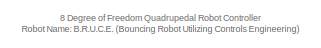
[diagram: root canvas - part 1/6, top left region]
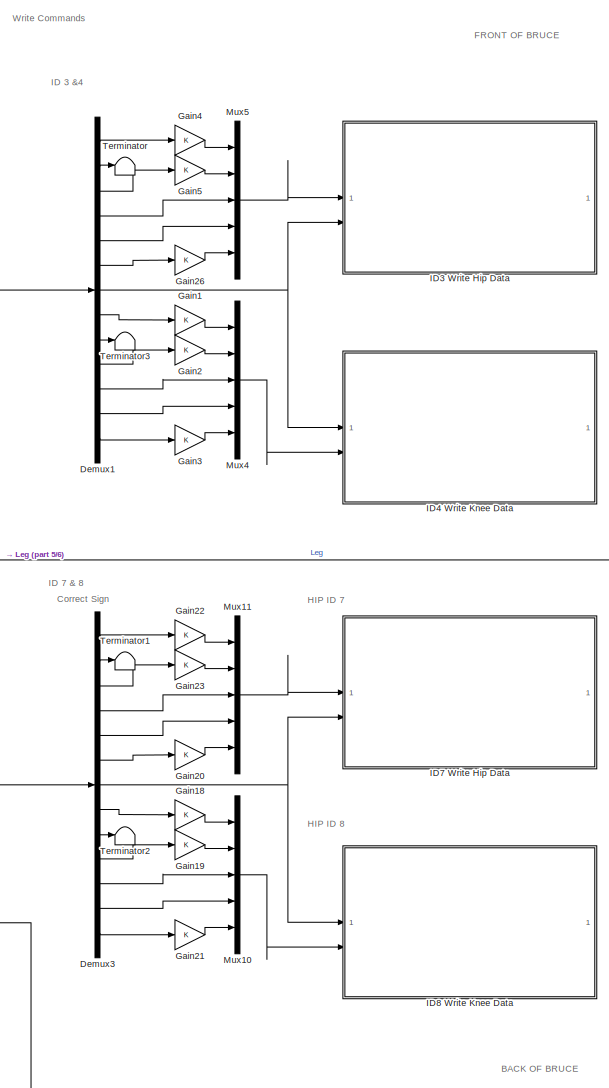
[diagram: root canvas - part 2/6, middle right region]
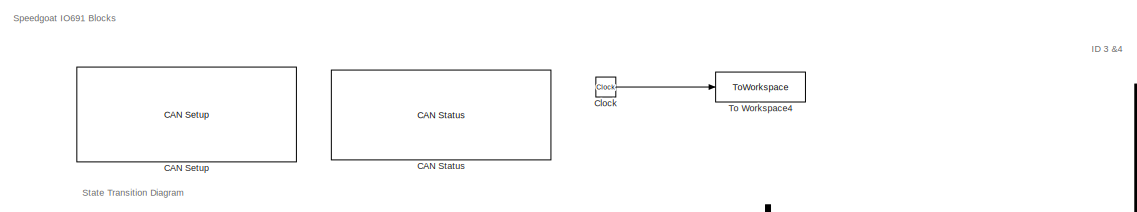
[diagram: root canvas - part 3/6, top center region]
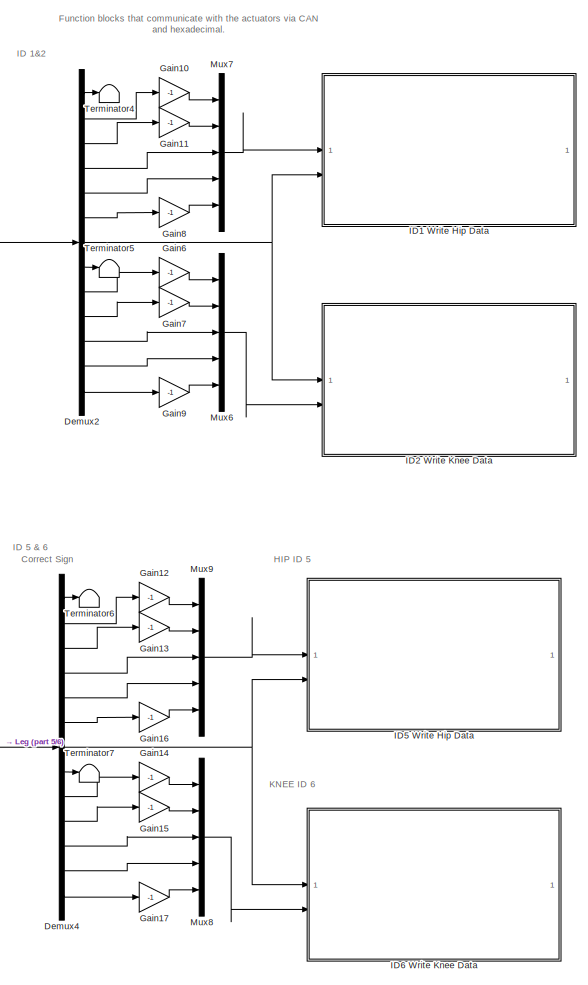
[diagram: root canvas - part 4/6, middle right region]
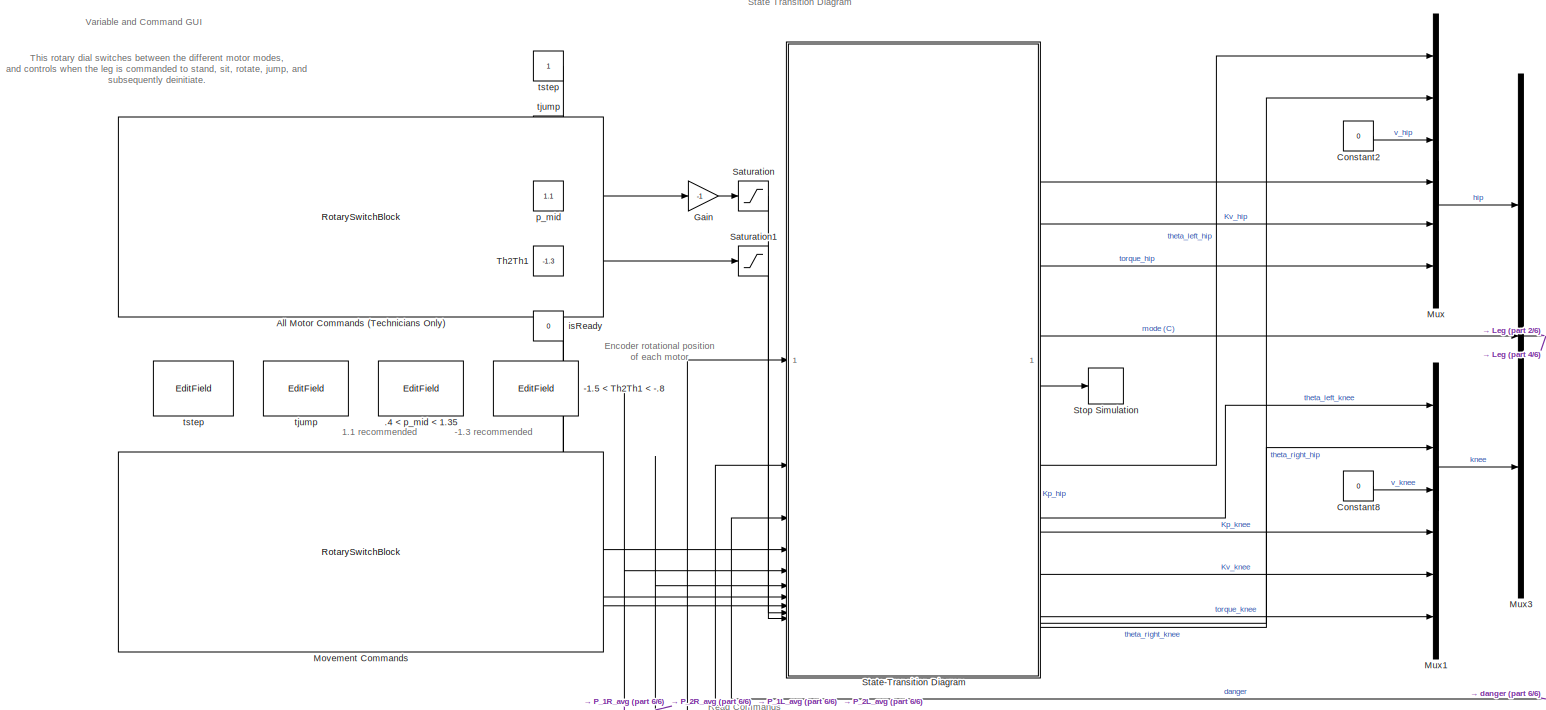
[diagram: root canvas - part 5/6, middle left region]
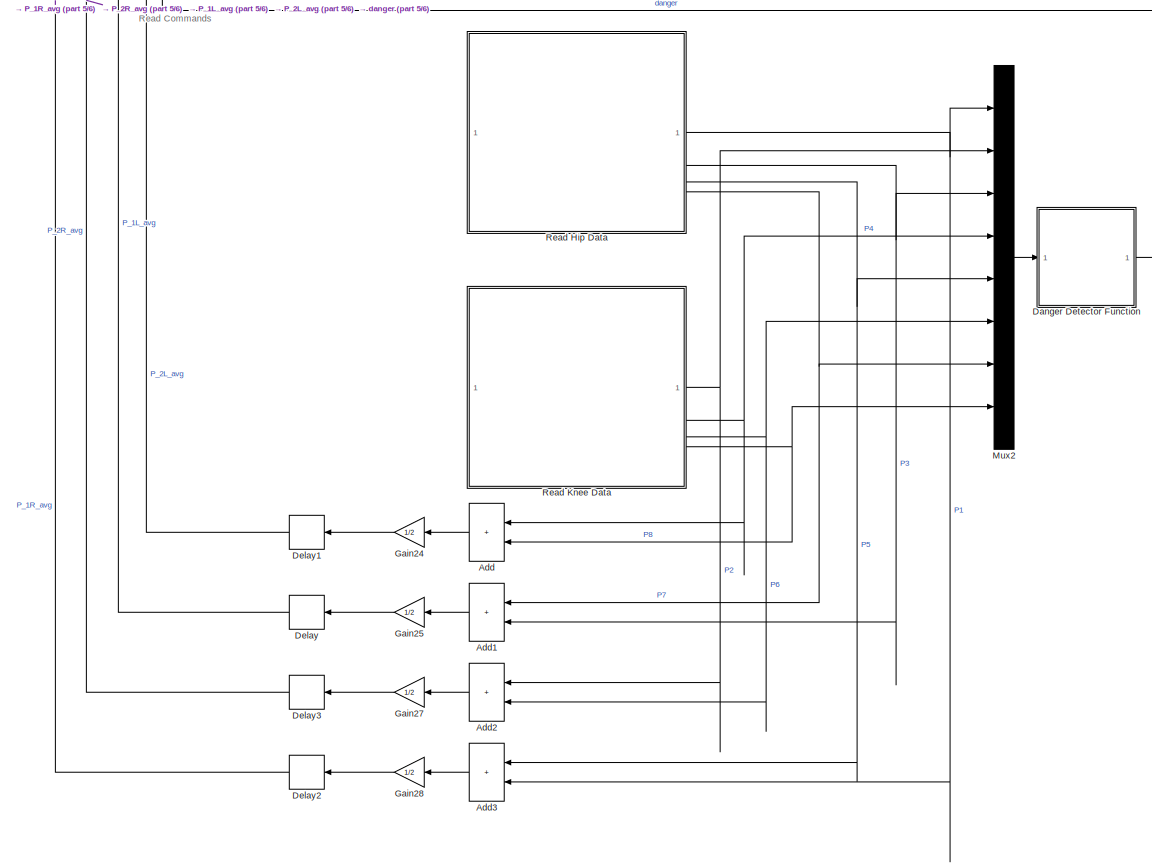
[diagram: root canvas - part 6/6, bottom center region]
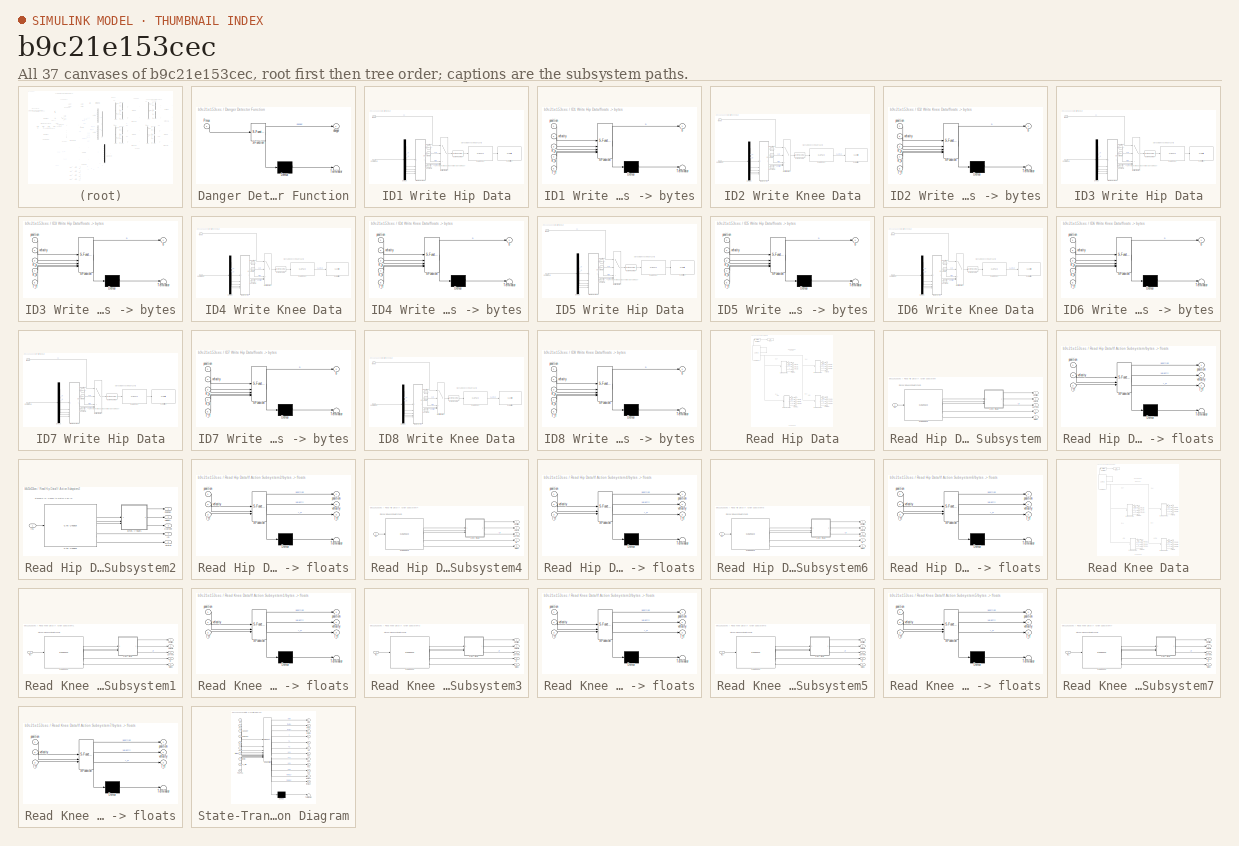
[diagram: thumbnail index - all 37 canvases of the model, root first then tree order]
MODEL slx_b9c21e153cec
KIND model
CONFIG AbsTol = auto
CONFIG EnableMultiTasking = off
CONFIG FixedStep = 0.005
CONFIG MaxStep = auto
CONFIG MinStep = auto
CONFIG RelTol = 1e-3
CONFIG SampleTimeConstraint = Unconstrained
CONFIG SolverName = FixedStepAuto
CONFIG StartTime = 0.0
CONFIG StopTime = inf
BLOCK [Constant]  tjump 
  Value = 0.12
BLOCK [Constant]  tstep 
BLOCK [EditField] -1.5 < Th2Th1 < -.8
  Alignment = Center
  LabelPosition = Hide
  ShowInitialText = on
BLOCK [EditField] .4 < p_mid < 1.35
  Alignment = Center
  LabelPosition = Hide
  ShowInitialText = on
BLOCK [Sum] Add
  IconShape = rectangular
BLOCK [Sum] Add1
  IconShape = rectangular
BLOCK [Sum] Add2
  IconShape = rectangular
BLOCK [Sum] Add3
  IconShape = rectangular
BLOCK [RotarySwitchBlock] All Motor Commands (Technicians Only) 
BLOCK [Reference] CAN Setup   REF=speedgoatlib_IO691/Legacy/CAN Setup 
  SourceBlock = speedgoatlib_IO691/Legacy/CAN Setup
  SourceProductName = Simulink Real-Time: Speedgoat I/O Blockset
  SourceType = setup_IO691
BLOCK [Reference] CAN Status  REF=speedgoatlib_IO691/Legacy/CAN Status
  SourceBlock = speedgoatlib_IO691/Legacy/CAN Status
  SourceProductName = Simulink Real-Time: Speedgoat I/O Blockset
  SourceType = status_IO691
  UserDataPersistent = on
BLOCK [Clock] Clock
BLOCK [Constant] Constant2
  Value = 0
BLOCK [Constant] Constant8
  Value = 0
BLOCK [SubSystem] Danger Detector Function
  ErrorFcn = Stateflow.Translate.translate
  PermitHierarchicalResolution = ExplicitOnly
  SFBlockType = MATLAB Function
  TreatAsAtomicUnit = on
BLOCK [Demux] Danger Detector Function/ Demux 
  Outputs = 1
BLOCK [S-Function] Danger Detector Function/ SFunction 
  EnableBusSupport = on
  FunctionName = sf_sfun
  PortCounts = [1 2]
  SFcnIsStateOwnerBlock = off
  SFunctionDeploymentMode = off
  Tag = Stateflow S-Function 6
BLOCK [Terminator] Danger Detector Function/ Terminator 
BLOCK [Inport] Danger Detector Function/Pmux
BLOCK [Outport] Danger Detector Function/danger
BLOCK [Delay] Delay
  DelayLength = 1
  InputPortMap = u0
BLOCK [Delay] Delay1
  DelayLength = 1
  InputPortMap = u0
BLOCK [Delay] Delay2
  DelayLength = 1
  InputPortMap = u0
BLOCK [Delay] Delay3
  DelayLength = 1
  InputPortMap = u0
BLOCK [Demux] Demux1
  Outputs = 13
BLOCK [Demux] Demux2
  Outputs = 13
BLOCK [Demux] Demux3
  Outputs = 13
BLOCK [Demux] Demux4
  Outputs = 13
BLOCK [Gain] Gain
  Gain = -1
BLOCK [Gain] Gain1
BLOCK [Gain] Gain10
  Gain = -1
BLOCK [Gain] Gain11
  Gain = -1
BLOCK [Gain] Gain12
  Gain = -1
BLOCK [Gain] Gain13
  Gain = -1
BLOCK [Gain] Gain14
  Gain = -1
BLOCK [Gain] Gain15
  Gain = -1
BLOCK [Gain] Gain16
  Gain = -1
BLOCK [Gain] Gain17
  Gain = -1
BLOCK [Gain] Gain18
BLOCK [Gain] Gain19
BLOCK [Gain] Gain2
BLOCK [Gain] Gain20
BLOCK [Gain] Gain21
BLOCK [Gain] Gain22
BLOCK [Gain] Gain23
BLOCK [Gain] Gain24
  Gain = 1/2
BLOCK [Gain] Gain25
  Gain = 1/2
BLOCK [Gain] Gain26
BLOCK [Gain] Gain27
  Gain = 1/2
BLOCK [Gain] Gain28
  Gain = 1/2
BLOCK [Gain] Gain3
BLOCK [Gain] Gain4
BLOCK [Gain] Gain5
BLOCK [Gain] Gain6
  Gain = -1
BLOCK [Gain] Gain7
  Gain = -1
BLOCK [Gain] Gain8
  Gain = -1
BLOCK [Gain] Gain9
  Gain = -1
BLOCK [SubSystem] ID1 Write Hip Data
  TreatAsAtomicUnit = on
BLOCK [Reference] ID1 Write Hip Data/Byte Packing  REF=slrealtimeutilitieslib/Byte Packing
  SourceBlock = slrealtimeutilitieslib/Byte Packing
  SourceType = slrealtimebytepacking
BLOCK [Reference] ID1 Write Hip Data/CAN Pack1  REF=canmsglib/CAN Pack
  SourceBlock = canmsglib/CAN Pack
  SourceType = CAN Pack
BLOCK [Reference] ID1 Write Hip Data/CAN Write1  REF=speedgoatlib_IO691/Legacy/CAN Write
  SourceBlock = speedgoatlib_IO691/Legacy/CAN Write
  SourceProductName = Simulink Real-Time: Speedgoat I/O Blockset
  SourceType = write_IO691
BLOCK [Inport] ID1 Write Hip Data/Command
BLOCK [Constant] ID1 Write Hip Data/Constant
  Value = [0xFF, 0xFF, 0xFF, 0xFF, 0xFF, 0xFF, 0xFF, 0xFE]
BLOCK [Constant] ID1 Write Hip Data/Constant1
  Value = [0xFF, 0xFF, 0xFF, 0xFF, 0xFF, 0xFF, 0xFF, 0xFC]
BLOCK [Constant] ID1 Write Hip Data/Constant2
  Value = [0xFF, 0xFF, 0xFF, 0xFF, 0xFF, 0xFF, 0xFF, 0xFD]
BLOCK [Demux] ID1 Write Hip Data/Demux
  Outputs = 5
BLOCK [Inport] ID1 Write Hip Data/Mode
  Port = 2
BLOCK [MultiPortSwitch] ID1 Write Hip Data/Multiport Switch
  DiagnosticForDefault = None
  InputSameDT = off
  Inputs = 4
  SaturateOnIntegerOverflow = off
BLOCK [SubSystem] ID1 Write Hip Data/floats -> bytes
  ErrorFcn = Stateflow.Translate.translate
  PermitHierarchicalResolution = ExplicitOnly
  SFBlockType = MATLAB Function
  TreatAsAtomicUnit = on
BLOCK [Demux] ID1 Write Hip Data/floats -> bytes/ Demux 
  Outputs = 1
BLOCK [S-Function] ID1 Write Hip Data/floats -> bytes/ SFunction 
  EnableBusSupport = on
  FunctionName = sf_sfun
  PortCounts = [5 2]
  SFcnIsStateOwnerBlock = off
  SFunctionDeploymentMode = off
  Tag = Stateflow S-Function 14
BLOCK [Terminator] ID1 Write Hip Data/floats -> bytes/ Terminator 
BLOCK [Inport] ID1 Write Hip Data/floats -> bytes/K_d
  Port = 4
BLOCK [Inport] ID1 Write Hip Data/floats -> bytes/K_p
  Port = 3
BLOCK [Inport] ID1 Write Hip Data/floats -> bytes/T_ff
  Port = 5
BLOCK [Outport] ID1 Write Hip Data/floats -> bytes/b
BLOCK [Inport] ID1 Write Hip Data/floats -> bytes/position
BLOCK [Inport] ID1 Write Hip Data/floats -> bytes/velocity
  Port = 2
BLOCK [SubSystem] ID2 Write Knee Data
  TreatAsAtomicUnit = on
BLOCK [Reference] ID2 Write Knee Data/Byte Packing  REF=slrealtimeutilitieslib/Byte Packing
  SourceBlock = slrealtimeutilitieslib/Byte Packing
  SourceType = slrealtimebytepacking
BLOCK [Reference] ID2 Write Knee Data/CAN Pack1  REF=canmsglib/CAN Pack
  SourceBlock = canmsglib/CAN Pack
  SourceType = CAN Pack
BLOCK [Reference] ID2 Write Knee Data/CAN Write1  REF=speedgoatlib_IO691/Legacy/CAN Write
  SourceBlock = speedgoatlib_IO691/Legacy/CAN Write
  SourceProductName = Simulink Real-Time: Speedgoat I/O Blockset
  SourceType = write_IO691
BLOCK [Inport] ID2 Write Knee Data/Command
  Port = 2
BLOCK [Constant] ID2 Write Knee Data/Constant
  Value = [0xFF, 0xFF, 0xFF, 0xFF, 0xFF, 0xFF, 0xFF, 0xFE]
BLOCK [Constant] ID2 Write Knee Data/Constant1
  Value = [0xFF, 0xFF, 0xFF, 0xFF, 0xFF, 0xFF, 0xFF, 0xFC]
BLOCK [Constant] ID2 Write Knee Data/Constant2
  Value = [0xFF, 0xFF, 0xFF, 0xFF, 0xFF, 0xFF, 0xFF, 0xFD]
BLOCK [Demux] ID2 Write Knee Data/Demux
  Outputs = 5
BLOCK [Inport] ID2 Write Knee Data/Mode
BLOCK [MultiPortSwitch] ID2 Write Knee Data/Multiport Switch
  DiagnosticForDefault = None
  InputSameDT = off
  Inputs = 4
  SaturateOnIntegerOverflow = off
BLOCK [SubSystem] ID2 Write Knee Data/floats -> bytes
  ErrorFcn = Stateflow.Translate.translate
  PermitHierarchicalResolution = ExplicitOnly
  SFBlockType = MATLAB Function
  TreatAsAtomicUnit = on
BLOCK [Demux] ID2 Write Knee Data/floats -> bytes/ Demux 
  Outputs = 1
BLOCK [S-Function] ID2 Write Knee Data/floats -> bytes/ SFunction 
  EnableBusSupport = on
  FunctionName = sf_sfun
  PortCounts = [5 2]
  SFcnIsStateOwnerBlock = off
  SFunctionDeploymentMode = off
  Tag = Stateflow S-Function 13
BLOCK [Terminator] ID2 Write Knee Data/floats -> bytes/ Terminator 
BLOCK [Inport] ID2 Write Knee Data/floats -> bytes/K_d
  Port = 4
BLOCK [Inport] ID2 Write Knee Data/floats -> bytes/K_p
  Port = 3
BLOCK [Inport] ID2 Write Knee Data/floats -> bytes/T_ff
  Port = 5
BLOCK [Outport] ID2 Write Knee Data/floats -> bytes/b
BLOCK [Inport] ID2 Write Knee Data/floats -> bytes/position
BLOCK [Inport] ID2 Write Knee Data/floats -> bytes/velocity
  Port = 2
BLOCK [SubSystem] ID3 Write Hip Data
  TreatAsAtomicUnit = on
BLOCK [Reference] ID3 Write Hip Data/Byte Packing  REF=slrealtimeutilitieslib/Byte Packing
  SourceBlock = slrealtimeutilitieslib/Byte Packing
  SourceType = slrealtimebytepacking
BLOCK [Reference] ID3 Write Hip Data/CAN Pack1  REF=canmsglib/CAN Pack
  SourceBlock = canmsglib/CAN Pack
  SourceType = CAN Pack
BLOCK [Reference] ID3 Write Hip Data/CAN Write1  REF=speedgoatlib_IO691/Legacy/CAN Write
  SourceBlock = speedgoatlib_IO691/Legacy/CAN Write
  SourceProductName = Simulink Real-Time: Speedgoat I/O Blockset
  SourceType = write_IO691
BLOCK [Inport] ID3 Write Hip Data/Command
BLOCK [Constant] ID3 Write Hip Data/Constant
  Value = [0xFF, 0xFF, 0xFF, 0xFF, 0xFF, 0xFF, 0xFF, 0xFE]
BLOCK [Constant] ID3 Write Hip Data/Constant1
  Value = [0xFF, 0xFF, 0xFF, 0xFF, 0xFF, 0xFF, 0xFF, 0xFC]
BLOCK [Constant] ID3 Write Hip Data/Constant2
  Value = [0xFF, 0xFF, 0xFF, 0xFF, 0xFF, 0xFF, 0xFF, 0xFD]
BLOCK [Demux] ID3 Write Hip Data/Demux
  Outputs = 5
BLOCK [Inport] ID3 Write Hip Data/Mode
  Port = 2
BLOCK [MultiPortSwitch] ID3 Write Hip Data/Multiport Switch
  DiagnosticForDefault = None
  InputSameDT = off
  Inputs = 4
  SaturateOnIntegerOverflow = off
BLOCK [SubSystem] ID3 Write Hip Data/floats -> bytes
  ErrorFcn = Stateflow.Translate.translate
  PermitHierarchicalResolution = ExplicitOnly
  SFBlockType = MATLAB Function
  TreatAsAtomicUnit = on
BLOCK [Demux] ID3 Write Hip Data/floats -> bytes/ Demux 
  Outputs = 1
BLOCK [S-Function] ID3 Write Hip Data/floats -> bytes/ SFunction 
  EnableBusSupport = on
  FunctionName = sf_sfun
  PortCounts = [5 2]
  SFcnIsStateOwnerBlock = off
  SFunctionDeploymentMode = off
  Tag = Stateflow S-Function 5
BLOCK [Terminator] ID3 Write Hip Data/floats -> bytes/ Terminator 
BLOCK [Inport] ID3 Write Hip Data/floats -> bytes/K_d
  Port = 4
BLOCK [Inport] ID3 Write Hip Data/floats -> bytes/K_p
  Port = 3
BLOCK [Inport] ID3 Write Hip Data/floats -> bytes/T_ff
  Port = 5
BLOCK [Outport] ID3 Write Hip Data/floats -> bytes/b
BLOCK [Inport] ID3 Write Hip Data/floats -> bytes/position
BLOCK [Inport] ID3 Write Hip Data/floats -> bytes/velocity
  Port = 2
BLOCK [SubSystem] ID4 Write Knee Data
  TreatAsAtomicUnit = on
BLOCK [Reference] ID4 Write Knee Data/Byte Packing  REF=slrealtimeutilitieslib/Byte Packing
  SourceBlock = slrealtimeutilitieslib/Byte Packing
  SourceType = slrealtimebytepacking
BLOCK [Reference] ID4 Write Knee Data/CAN Pack1  REF=canmsglib/CAN Pack
  SourceBlock = canmsglib/CAN Pack
  SourceType = CAN Pack
BLOCK [Reference] ID4 Write Knee Data/CAN Write1  REF=speedgoatlib_IO691/Legacy/CAN Write
  SourceBlock = speedgoatlib_IO691/Legacy/CAN Write
  SourceProductName = Simulink Real-Time: Speedgoat I/O Blockset
  SourceType = write_IO691
BLOCK [Inport] ID4 Write Knee Data/Command
  Port = 2
BLOCK [Constant] ID4 Write Knee Data/Constant
  Value = [0xFF, 0xFF, 0xFF, 0xFF, 0xFF, 0xFF, 0xFF, 0xFE]
BLOCK [Constant] ID4 Write Knee Data/Constant1
  Value = [0xFF, 0xFF, 0xFF, 0xFF, 0xFF, 0xFF, 0xFF, 0xFC]
BLOCK [Constant] ID4 Write Knee Data/Constant2
  Value = [0xFF, 0xFF, 0xFF, 0xFF, 0xFF, 0xFF, 0xFF, 0xFD]
BLOCK [Demux] ID4 Write Knee Data/Demux
  Outputs = 5
BLOCK [Inport] ID4 Write Knee Data/Mode
BLOCK [MultiPortSwitch] ID4 Write Knee Data/Multiport Switch
  DiagnosticForDefault = None
  InputSameDT = off
  Inputs = 4
  SaturateOnIntegerOverflow = off
BLOCK [SubSystem] ID4 Write Knee Data/floats -> bytes
  ErrorFcn = Stateflow.Translate.translate
  PermitHierarchicalResolution = ExplicitOnly
  SFBlockType = MATLAB Function
  TreatAsAtomicUnit = on
BLOCK [Demux] ID4 Write Knee Data/floats -> bytes/ Demux 
  Outputs = 1
BLOCK [S-Function] ID4 Write Knee Data/floats -> bytes/ SFunction 
  EnableBusSupport = on
  FunctionName = sf_sfun
  PortCounts = [5 2]
  SFcnIsStateOwnerBlock = off
  SFunctionDeploymentMode = off
  Tag = Stateflow S-Function 3
BLOCK [Terminator] ID4 Write Knee Data/floats -> bytes/ Terminator 
BLOCK [Inport] ID4 Write Knee Data/floats -> bytes/K_d
  Port = 4
BLOCK [Inport] ID4 Write Knee Data/floats -> bytes/K_p
  Port = 3
BLOCK [Inport] ID4 Write Knee Data/floats -> bytes/T_ff
  Port = 5
BLOCK [Outport] ID4 Write Knee Data/floats -> bytes/b
BLOCK [Inport] ID4 Write Knee Data/floats -> bytes/position
BLOCK [Inport] ID4 Write Knee Data/floats -> bytes/velocity
  Port = 2
BLOCK [SubSystem] ID5 Write Hip Data
  TreatAsAtomicUnit = on
BLOCK [Reference] ID5 Write Hip Data/Byte Packing  REF=slrealtimeutilitieslib/Byte Packing
  SourceBlock = slrealtimeutilitieslib/Byte Packing
  SourceType = slrealtimebytepacking
BLOCK [Reference] ID5 Write Hip Data/CAN Pack1  REF=canmsglib/CAN Pack
  SourceBlock = canmsglib/CAN Pack
  SourceType = CAN Pack
BLOCK [Reference] ID5 Write Hip Data/CAN Write1  REF=speedgoatlib_IO691/Legacy/CAN Write
  SourceBlock = speedgoatlib_IO691/Legacy/CAN Write
  SourceProductName = Simulink Real-Time: Speedgoat I/O Blockset
  SourceType = write_IO691
BLOCK [Inport] ID5 Write Hip Data/Command
BLOCK [Constant] ID5 Write Hip Data/Constant
  Value = [0xFF, 0xFF, 0xFF, 0xFF, 0xFF, 0xFF, 0xFF, 0xFE]
BLOCK [Constant] ID5 Write Hip Data/Constant1
  Value = [0xFF, 0xFF, 0xFF, 0xFF, 0xFF, 0xFF, 0xFF, 0xFC]
BLOCK [Constant] ID5 Write Hip Data/Constant2
  Value = [0xFF, 0xFF, 0xFF, 0xFF, 0xFF, 0xFF, 0xFF, 0xFD]
BLOCK [Demux] ID5 Write Hip Data/Demux
  Outputs = 5
BLOCK [Inport] ID5 Write Hip Data/Mode
  Port = 2
BLOCK [MultiPortSwitch] ID5 Write Hip Data/Multiport Switch
  DiagnosticForDefault = None
  InputSameDT = off
  Inputs = 4
  SaturateOnIntegerOverflow = off
BLOCK [SubSystem] ID5 Write Hip Data/floats -> bytes
  ErrorFcn = Stateflow.Translate.translate
  PermitHierarchicalResolution = ExplicitOnly
  SFBlockType = MATLAB Function
  TreatAsAtomicUnit = on
BLOCK [Demux] ID5 Write Hip Data/floats -> bytes/ Demux 
  Outputs = 1
BLOCK [S-Function] ID5 Write Hip Data/floats -> bytes/ SFunction 
  EnableBusSupport = on
  FunctionName = sf_sfun
  PortCounts = [5 2]
  SFcnIsStateOwnerBlock = off
  SFunctionDeploymentMode = off
  Tag = Stateflow S-Function 16
BLOCK [Terminator] ID5 Write Hip Data/floats -> bytes/ Terminator 
BLOCK [Inport] ID5 Write Hip Data/floats -> bytes/K_d
  Port = 4
BLOCK [Inport] ID5 Write Hip Data/floats -> bytes/K_p
  Port = 3
BLOCK [Inport] ID5 Write Hip Data/floats -> bytes/T_ff
  Port = 5
BLOCK [Outport] ID5 Write Hip Data/floats -> bytes/b
BLOCK [Inport] ID5 Write Hip Data/floats -> bytes/position
BLOCK [Inport] ID5 Write Hip Data/floats -> bytes/velocity
  Port = 2
BLOCK [SubSystem] ID6 Write Knee Data
  TreatAsAtomicUnit = on
BLOCK [Reference] ID6 Write Knee Data/Byte Packing  REF=slrealtimeutilitieslib/Byte Packing
  SourceBlock = slrealtimeutilitieslib/Byte Packing
  SourceType = slrealtimebytepacking
BLOCK [Reference] ID6 Write Knee Data/CAN Pack1  REF=canmsglib/CAN Pack
  SourceBlock = canmsglib/CAN Pack
  SourceType = CAN Pack
BLOCK [Reference] ID6 Write Knee Data/CAN Write1  REF=speedgoatlib_IO691/Legacy/CAN Write
  SourceBlock = speedgoatlib_IO691/Legacy/CAN Write
  SourceProductName = Simulink Real-Time: Speedgoat I/O Blockset
  SourceType = write_IO691
BLOCK [Inport] ID6 Write Knee Data/Command
  Port = 2
BLOCK [Constant] ID6 Write Knee Data/Constant
  Value = [0xFF, 0xFF, 0xFF, 0xFF, 0xFF, 0xFF, 0xFF, 0xFE]
BLOCK [Constant] ID6 Write Knee Data/Constant1
  Value = [0xFF, 0xFF, 0xFF, 0xFF, 0xFF, 0xFF, 0xFF, 0xFC]
BLOCK [Constant] ID6 Write Knee Data/Constant2
  Value = [0xFF, 0xFF, 0xFF, 0xFF, 0xFF, 0xFF, 0xFF, 0xFD]
BLOCK [Demux] ID6 Write Knee Data/Demux
  Outputs = 5
BLOCK [Inport] ID6 Write Knee Data/Mode
BLOCK [MultiPortSwitch] ID6 Write Knee Data/Multiport Switch
  DiagnosticForDefault = None
  InputSameDT = off
  Inputs = 4
  SaturateOnIntegerOverflow = off
BLOCK [SubSystem] ID6 Write Knee Data/floats -> bytes
  ErrorFcn = Stateflow.Translate.translate
  PermitHierarchicalResolution = ExplicitOnly
  SFBlockType = MATLAB Function
  TreatAsAtomicUnit = on
BLOCK [Demux] ID6 Write Knee Data/floats -> bytes/ Demux 
  Outputs = 1
BLOCK [S-Function] ID6 Write Knee Data/floats -> bytes/ SFunction 
  EnableBusSupport = on
  FunctionName = sf_sfun
  PortCounts = [5 2]
  SFcnIsStateOwnerBlock = off
  SFunctionDeploymentMode = off
  Tag = Stateflow S-Function 15
BLOCK [Terminator] ID6 Write Knee Data/floats -> bytes/ Terminator 
BLOCK [Inport] ID6 Write Knee Data/floats -> bytes/K_d
  Port = 4
BLOCK [Inport] ID6 Write Knee Data/floats -> bytes/K_p
  Port = 3
BLOCK [Inport] ID6 Write Knee Data/floats -> bytes/T_ff
  Port = 5
BLOCK [Outport] ID6 Write Knee Data/floats -> bytes/b
BLOCK [Inport] ID6 Write Knee Data/floats -> bytes/position
BLOCK [Inport] ID6 Write Knee Data/floats -> bytes/velocity
  Port = 2
BLOCK [SubSystem] ID7 Write Hip Data
  TreatAsAtomicUnit = on
BLOCK [Reference] ID7 Write Hip Data/Byte Packing  REF=slrealtimeutilitieslib/Byte Packing
  SourceBlock = slrealtimeutilitieslib/Byte Packing
  SourceType = slrealtimebytepacking
BLOCK [Reference] ID7 Write Hip Data/CAN Pack1  REF=canmsglib/CAN Pack
  SourceBlock = canmsglib/CAN Pack
  SourceType = CAN Pack
BLOCK [Reference] ID7 Write Hip Data/CAN Write1  REF=speedgoatlib_IO691/Legacy/CAN Write
  SourceBlock = speedgoatlib_IO691/Legacy/CAN Write
  SourceProductName = Simulink Real-Time: Speedgoat I/O Blockset
  SourceType = write_IO691
BLOCK [Inport] ID7 Write Hip Data/Command
BLOCK [Constant] ID7 Write Hip Data/Constant
  Value = [0xFF, 0xFF, 0xFF, 0xFF, 0xFF, 0xFF, 0xFF, 0xFE]
BLOCK [Constant] ID7 Write Hip Data/Constant1
  Value = [0xFF, 0xFF, 0xFF, 0xFF, 0xFF, 0xFF, 0xFF, 0xFC]
BLOCK [Constant] ID7 Write Hip Data/Constant2
  Value = [0xFF, 0xFF, 0xFF, 0xFF, 0xFF, 0xFF, 0xFF, 0xFD]
BLOCK [Demux] ID7 Write Hip Data/Demux
  Outputs = 5
BLOCK [Inport] ID7 Write Hip Data/Mode
  Port = 2
BLOCK [MultiPortSwitch] ID7 Write Hip Data/Multiport Switch
  DiagnosticForDefault = None
  InputSameDT = off
  Inputs = 4
  SaturateOnIntegerOverflow = off
BLOCK [SubSystem] ID7 Write Hip Data/floats -> bytes
  ErrorFcn = Stateflow.Translate.translate
  PermitHierarchicalResolution = ExplicitOnly
  SFBlockType = MATLAB Function
  TreatAsAtomicUnit = on
BLOCK [Demux] ID7 Write Hip Data/floats -> bytes/ Demux 
  Outputs = 1
BLOCK [S-Function] ID7 Write Hip Data/floats -> bytes/ SFunction 
  EnableBusSupport = on
  FunctionName = sf_sfun
  PortCounts = [5 2]
  SFcnIsStateOwnerBlock = off
  SFunctionDeploymentMode = off
  Tag = Stateflow S-Function 18
BLOCK [Terminator] ID7 Write Hip Data/floats -> bytes/ Terminator 
BLOCK [Inport] ID7 Write Hip Data/floats -> bytes/K_d
  Port = 4
BLOCK [Inport] ID7 Write Hip Data/floats -> bytes/K_p
  Port = 3
BLOCK [Inport] ID7 Write Hip Data/floats -> bytes/T_ff
  Port = 5
BLOCK [Outport] ID7 Write Hip Data/floats -> bytes/b
BLOCK [Inport] ID7 Write Hip Data/floats -> bytes/position
BLOCK [Inport] ID7 Write Hip Data/floats -> bytes/velocity
  Port = 2
BLOCK [SubSystem] ID8 Write Knee Data
  TreatAsAtomicUnit = on
BLOCK [Reference] ID8 Write Knee Data/Byte Packing  REF=slrealtimeutilitieslib/Byte Packing
  SourceBlock = slrealtimeutilitieslib/Byte Packing
  SourceType = slrealtimebytepacking
BLOCK [Reference] ID8 Write Knee Data/CAN Pack1  REF=canmsglib/CAN Pack
  SourceBlock = canmsglib/CAN Pack
  SourceType = CAN Pack
BLOCK [Reference] ID8 Write Knee Data/CAN Write1  REF=speedgoatlib_IO691/Legacy/CAN Write
  SourceBlock = speedgoatlib_IO691/Legacy/CAN Write
  SourceProductName = Simulink Real-Time: Speedgoat I/O Blockset
  SourceType = write_IO691
BLOCK [Inport] ID8 Write Knee Data/Command
  Port = 2
BLOCK [Constant] ID8 Write Knee Data/Constant
  Value = [0xFF, 0xFF, 0xFF, 0xFF, 0xFF, 0xFF, 0xFF, 0xFE]
BLOCK [Constant] ID8 Write Knee Data/Constant1
  Value = [0xFF, 0xFF, 0xFF, 0xFF, 0xFF, 0xFF, 0xFF, 0xFC]
BLOCK [Constant] ID8 Write Knee Data/Constant2
  Value = [0xFF, 0xFF, 0xFF, 0xFF, 0xFF, 0xFF, 0xFF, 0xFD]
BLOCK [Demux] ID8 Write Knee Data/Demux
  Outputs = 5
BLOCK [Inport] ID8 Write Knee Data/Mode
BLOCK [MultiPortSwitch] ID8 Write Knee Data/Multiport Switch
  DiagnosticForDefault = None
  InputSameDT = off
  Inputs = 4
  SaturateOnIntegerOverflow = off
BLOCK [SubSystem] ID8 Write Knee Data/floats -> bytes
  ErrorFcn = Stateflow.Translate.translate
  PermitHierarchicalResolution = ExplicitOnly
  SFBlockType = MATLAB Function
  TreatAsAtomicUnit = on
BLOCK [Demux] ID8 Write Knee Data/floats -> bytes/ Demux 
  Outputs = 1
BLOCK [S-Function] ID8 Write Knee Data/floats -> bytes/ SFunction 
  EnableBusSupport = on
  FunctionName = sf_sfun
  PortCounts = [5 2]
  SFcnIsStateOwnerBlock = off
  SFunctionDeploymentMode = off
  Tag = Stateflow S-Function 17
BLOCK [Terminator] ID8 Write Knee Data/floats -> bytes/ Terminator 
BLOCK [Inport] ID8 Write Knee Data/floats -> bytes/K_d
  Port = 4
BLOCK [Inport] ID8 Write Knee Data/floats -> bytes/K_p
  Port = 3
BLOCK [Inport] ID8 Write Knee Data/floats -> bytes/T_ff
  Port = 5
BLOCK [Outport] ID8 Write Knee Data/floats -> bytes/b
BLOCK [Inport] ID8 Write Knee Data/floats -> bytes/position
BLOCK [Inport] ID8 Write Knee Data/floats -> bytes/velocity
  Port = 2
BLOCK [RotarySwitchBlock] Movement Commands
BLOCK [Mux] Mux
  DisplayOption = bar
  Inputs = 6
BLOCK [Mux] Mux1
  DisplayOption = bar
  Inputs = 6
BLOCK [Mux] Mux10
  DisplayOption = bar
  Inputs = 5
BLOCK [Mux] Mux11
  DisplayOption = bar
  Inputs = 5
BLOCK [Mux] Mux2
  DisplayOption = bar
  Inputs = 8
BLOCK [Mux] Mux3
  DisplayOption = bar
  Inputs = 3
BLOCK [Mux] Mux4
  DisplayOption = bar
  Inputs = 5
BLOCK [Mux] Mux5
  DisplayOption = bar
  Inputs = 5
BLOCK [Mux] Mux6
  DisplayOption = bar
  Inputs = 5
BLOCK [Mux] Mux7
  DisplayOption = bar
  Inputs = 5
BLOCK [Mux] Mux8
  DisplayOption = bar
  Inputs = 5
BLOCK [Mux] Mux9
  DisplayOption = bar
  Inputs = 5
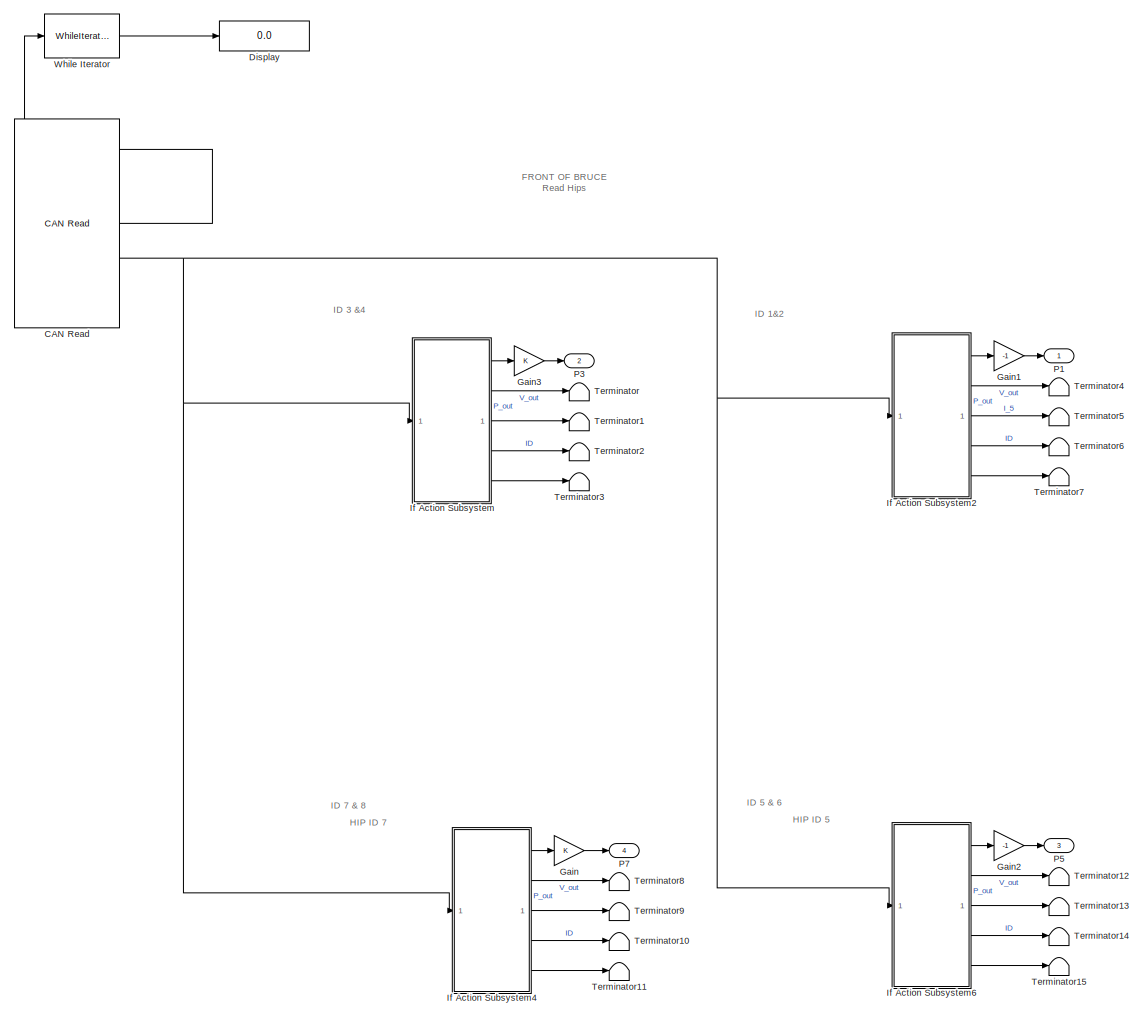
[diagram: Read Hip Data - part 1/2, most of the canvas]
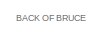
[diagram: Read Hip Data - part 2/2, bottom center region]
BLOCK [SubSystem] Read Hip Data
  TreatAsAtomicUnit = on
BLOCK [Reference] Read Hip Data/CAN Read  REF=speedgoatlib_IO691/Legacy/CAN Read
  SourceBlock = speedgoatlib_IO691/Legacy/CAN Read
  SourceProductName = Simulink Real-Time: Speedgoat I/O Blockset
  SourceType = read_IO691
BLOCK [Display] Read Hip Data/Display
  Decimation = 1
BLOCK [Gain] Read Hip Data/Gain
BLOCK [Gain] Read Hip Data/Gain1
  Gain = -1
BLOCK [Gain] Read Hip Data/Gain2
  Gain = -1
BLOCK [Gain] Read Hip Data/Gain3
BLOCK [SubSystem] Read Hip Data/If Action Subsystem
  TreatAsAtomicUnit = on
BLOCK [Reference] Read Hip Data/If Action Subsystem/CAN Unpack  REF=canmsglib/CAN Unpack
  SourceBlock = canmsglib/CAN Unpack
  SourceType = CAN Unpack
BLOCK [Outport] Read Hip Data/If Action Subsystem/Current
  Port = 3
BLOCK [Outport] Read Hip Data/If Action Subsystem/ID
  Port = 4
BLOCK [Inport] Read Hip Data/If Action Subsystem/In1
BLOCK [Outport] Read Hip Data/If Action Subsystem/Position
BLOCK [Outport] Read Hip Data/If Action Subsystem/Status
  Port = 5
BLOCK [Outport] Read Hip Data/If Action Subsystem/Velocity
  Port = 2
BLOCK [SubSystem] Read Hip Data/If Action Subsystem/bytes -> floats
  ErrorFcn = Stateflow.Translate.translate
  PermitHierarchicalResolution = ExplicitOnly
  SFBlockType = MATLAB Function
  TreatAsAtomicUnit = on
BLOCK [Demux] Read Hip Data/If Action Subsystem/bytes -> floats/ Demux 
  Outputs = 1
BLOCK [S-Function] Read Hip Data/If Action Subsystem/bytes -> floats/ SFunction 
  EnableBusSupport = on
  FunctionName = sf_sfun
  PortCounts = [3 4]
  SFcnIsStateOwnerBlock = off
  SFunctionDeploymentMode = off
  Tag = Stateflow S-Function 27
BLOCK [Terminator] Read Hip Data/If Action Subsystem/bytes -> floats/ Terminator 
BLOCK [Outport] Read Hip Data/If Action Subsystem/bytes -> floats/I_ff
  Port = 3
BLOCK [Inport] Read Hip Data/If Action Subsystem/bytes -> floats/I_ff 
  Port = 3
BLOCK [Outport] Read Hip Data/If Action Subsystem/bytes -> floats/position
BLOCK [Inport] Read Hip Data/If Action Subsystem/bytes -> floats/position 
BLOCK [Outport] Read Hip Data/If Action Subsystem/bytes -> floats/velocity
  Port = 2
BLOCK [Inport] Read Hip Data/If Action Subsystem/bytes -> floats/velocity 
  Port = 2
BLOCK [SubSystem] Read Hip Data/If Action Subsystem2
  TreatAsAtomicUnit = on
BLOCK [Reference] Read Hip Data/If Action Subsystem2/CAN Unpack  REF=canmsglib/CAN Unpack
  SourceBlock = canmsglib/CAN Unpack
  SourceType = CAN Unpack
BLOCK [Outport] Read Hip Data/If Action Subsystem2/Current
  Port = 3
BLOCK [Outport] Read Hip Data/If Action Subsystem2/ID
  Port = 4
BLOCK [Inport] Read Hip Data/If Action Subsystem2/In1
BLOCK [Outport] Read Hip Data/If Action Subsystem2/Position
BLOCK [Outport] Read Hip Data/If Action Subsystem2/Status
  Port = 5
BLOCK [Outport] Read Hip Data/If Action Subsystem2/Velocity
  Port = 2
BLOCK [SubSystem] Read Hip Data/If Action Subsystem2/bytes -> floats
  ErrorFcn = Stateflow.Translate.translate
  PermitHierarchicalResolution = ExplicitOnly
  SFBlockType = MATLAB Function
  TreatAsAtomicUnit = on
BLOCK [Demux] Read Hip Data/If Action Subsystem2/bytes -> floats/ Demux 
  Outputs = 1
BLOCK [S-Function] Read Hip Data/If Action Subsystem2/bytes -> floats/ SFunction 
  EnableBusSupport = on
  FunctionName = sf_sfun
  PortCounts = [3 4]
  SFcnIsStateOwnerBlock = off
  SFunctionDeploymentMode = off
  Tag = Stateflow S-Function 29
BLOCK [Terminator] Read Hip Data/If Action Subsystem2/bytes -> floats/ Terminator 
BLOCK [Outport] Read Hip Data/If Action Subsystem2/bytes -> floats/I_ff
  Port = 3
BLOCK [Inport] Read Hip Data/If Action Subsystem2/bytes -> floats/I_ff 
  Port = 3
BLOCK [Outport] Read Hip Data/If Action Subsystem2/bytes -> floats/position
BLOCK [Inport] Read Hip Data/If Action Subsystem2/bytes -> floats/position 
BLOCK [Outport] Read Hip Data/If Action Subsystem2/bytes -> floats/velocity
  Port = 2
BLOCK [Inport] Read Hip Data/If Action Subsystem2/bytes -> floats/velocity 
  Port = 2
BLOCK [SubSystem] Read Hip Data/If Action Subsystem4
  TreatAsAtomicUnit = on
BLOCK [Reference] Read Hip Data/If Action Subsystem4/CAN Unpack  REF=canmsglib/CAN Unpack
  SourceBlock = canmsglib/CAN Unpack
  SourceType = CAN Unpack
BLOCK [Outport] Read Hip Data/If Action Subsystem4/Current
  Port = 3
BLOCK [Outport] Read Hip Data/If Action Subsystem4/ID
  Port = 4
BLOCK [Inport] Read Hip Data/If Action Subsystem4/In1
BLOCK [Outport] Read Hip Data/If Action Subsystem4/Position
BLOCK [Outport] Read Hip Data/If Action Subsystem4/Status
  Port = 5
BLOCK [Outport] Read Hip Data/If Action Subsystem4/Velocity
  Port = 2
BLOCK [SubSystem] Read Hip Data/If Action Subsystem4/bytes -> floats
  ErrorFcn = Stateflow.Translate.translate
  PermitHierarchicalResolution = ExplicitOnly
  SFBlockType = MATLAB Function
  TreatAsAtomicUnit = on
BLOCK [Demux] Read Hip Data/If Action Subsystem4/bytes -> floats/ Demux 
  Outputs = 1
BLOCK [S-Function] Read Hip Data/If Action Subsystem4/bytes -> floats/ SFunction 
  EnableBusSupport = on
  FunctionName = sf_sfun
  PortCounts = [3 4]
  SFcnIsStateOwnerBlock = off
  SFunctionDeploymentMode = off
  Tag = Stateflow S-Function 31
BLOCK [Terminator] Read Hip Data/If Action Subsystem4/bytes -> floats/ Terminator 
BLOCK [Outport] Read Hip Data/If Action Subsystem4/bytes -> floats/I_ff
  Port = 3
BLOCK [Inport] Read Hip Data/If Action Subsystem4/bytes -> floats/I_ff 
  Port = 3
BLOCK [Outport] Read Hip Data/If Action Subsystem4/bytes -> floats/position
BLOCK [Inport] Read Hip Data/If Action Subsystem4/bytes -> floats/position 
BLOCK [Outport] Read Hip Data/If Action Subsystem4/bytes -> floats/velocity
  Port = 2
BLOCK [Inport] Read Hip Data/If Action Subsystem4/bytes -> floats/velocity 
  Port = 2
BLOCK [SubSystem] Read Hip Data/If Action Subsystem6
  TreatAsAtomicUnit = on
BLOCK [Reference] Read Hip Data/If Action Subsystem6/CAN Unpack  REF=canmsglib/CAN Unpack
  SourceBlock = canmsglib/CAN Unpack
  SourceType = CAN Unpack
BLOCK [Outport] Read Hip Data/If Action Subsystem6/Current
  Port = 3
BLOCK [Outport] Read Hip Data/If Action Subsystem6/ID
  Port = 4
BLOCK [Inport] Read Hip Data/If Action Subsystem6/In1
BLOCK [Outport] Read Hip Data/If Action Subsystem6/Position
BLOCK [Outport] Read Hip Data/If Action Subsystem6/Status
  Port = 5
BLOCK [Outport] Read Hip Data/If Action Subsystem6/Velocity
  Port = 2
BLOCK [SubSystem] Read Hip Data/If Action Subsystem6/bytes -> floats
  ErrorFcn = Stateflow.Translate.translate
  PermitHierarchicalResolution = ExplicitOnly
  SFBlockType = MATLAB Function
  TreatAsAtomicUnit = on
BLOCK [Demux] Read Hip Data/If Action Subsystem6/bytes -> floats/ Demux 
  Outputs = 1
BLOCK [S-Function] Read Hip Data/If Action Subsystem6/bytes -> floats/ SFunction 
  EnableBusSupport = on
  FunctionName = sf_sfun
  PortCounts = [3 4]
  SFcnIsStateOwnerBlock = off
  SFunctionDeploymentMode = off
  Tag = Stateflow S-Function 33
BLOCK [Terminator] Read Hip Data/If Action Subsystem6/bytes -> floats/ Terminator 
BLOCK [Outport] Read Hip Data/If Action Subsystem6/bytes -> floats/I_ff
  Port = 3
BLOCK [Inport] Read Hip Data/If Action Subsystem6/bytes -> floats/I_ff 
  Port = 3
BLOCK [Outport] Read Hip Data/If Action Subsystem6/bytes -> floats/position
BLOCK [Inport] Read Hip Data/If Action Subsystem6/bytes -> floats/position 
BLOCK [Outport] Read Hip Data/If Action Subsystem6/bytes -> floats/velocity
  Port = 2
BLOCK [Inport] Read Hip Data/If Action Subsystem6/bytes -> floats/velocity 
  Port = 2
BLOCK [Outport] Read Hip Data/P1
BLOCK [Outport] Read Hip Data/P3
  Port = 2
BLOCK [Outport] Read Hip Data/P5
  Port = 3
BLOCK [Outport] Read Hip Data/P7
  Port = 4
BLOCK [Terminator] Read Hip Data/Terminator
BLOCK [Terminator] Read Hip Data/Terminator1
BLOCK [Terminator] Read Hip Data/Terminator10
BLOCK [Terminator] Read Hip Data/Terminator11
BLOCK [Terminator] Read Hip Data/Terminator12
BLOCK [Terminator] Read Hip Data/Terminator13
BLOCK [Terminator] Read Hip Data/Terminator14
BLOCK [Terminator] Read Hip Data/Terminator15
BLOCK [Terminator] Read Hip Data/Terminator2
BLOCK [Terminator] Read Hip Data/Terminator3
BLOCK [Terminator] Read Hip Data/Terminator4
BLOCK [Terminator] Read Hip Data/Terminator5
BLOCK [Terminator] Read Hip Data/Terminator6
BLOCK [Terminator] Read Hip Data/Terminator7
BLOCK [Terminator] Read Hip Data/Terminator8
BLOCK [Terminator] Read Hip Data/Terminator9
BLOCK [WhileIterator] Read Hip Data/While Iterator
  MaxIters = -1
  ResetStates = reset
  ShowIterationPort = on
  WhileBlockType = do-while
BLOCK [SubSystem] Read Knee Data
  TreatAsAtomicUnit = on
BLOCK [Reference] Read Knee Data/CAN Read  REF=speedgoatlib_IO691/Legacy/CAN Read
  SourceBlock = speedgoatlib_IO691/Legacy/CAN Read
  SourceProductName = Simulink Real-Time: Speedgoat I/O Blockset
  SourceType = read_IO691
BLOCK [Display] Read Knee Data/Display
  Decimation = 1
BLOCK [Gain] Read Knee Data/Gain
BLOCK [Gain] Read Knee Data/Gain1
BLOCK [Gain] Read Knee Data/Gain2
  Gain = -1
BLOCK [Gain] Read Knee Data/Gain3
  Gain = -1
BLOCK [SubSystem] Read Knee Data/If Action Subsystem1
  TreatAsAtomicUnit = on
BLOCK [Reference] Read Knee Data/If Action Subsystem1/CAN Unpack  REF=canmsglib/CAN Unpack
  SourceBlock = canmsglib/CAN Unpack
  SourceType = CAN Unpack
BLOCK [Outport] Read Knee Data/If Action Subsystem1/Current
  Port = 3
BLOCK [Outport] Read Knee Data/If Action Subsystem1/ID
  Port = 4
BLOCK [Inport] Read Knee Data/If Action Subsystem1/In1
BLOCK [Outport] Read Knee Data/If Action Subsystem1/Position
BLOCK [Outport] Read Knee Data/If Action Subsystem1/Status
  Port = 5
BLOCK [Outport] Read Knee Data/If Action Subsystem1/Velocity
  Port = 2
BLOCK [SubSystem] Read Knee Data/If Action Subsystem1/bytes -> floats
  ErrorFcn = Stateflow.Translate.translate
  PermitHierarchicalResolution = ExplicitOnly
  SFBlockType = MATLAB Function
  TreatAsAtomicUnit = on
BLOCK [Demux] Read Knee Data/If Action Subsystem1/bytes -> floats/ Demux 
  Outputs = 1
BLOCK [S-Function] Read Knee Data/If Action Subsystem1/bytes -> floats/ SFunction 
  EnableBusSupport = on
  FunctionName = sf_sfun
  PortCounts = [3 4]
  SFcnIsStateOwnerBlock = off
  SFunctionDeploymentMode = off
  Tag = Stateflow S-Function 20
BLOCK [Terminator] Read Knee Data/If Action Subsystem1/bytes -> floats/ Terminator 
BLOCK [Outport] Read Knee Data/If Action Subsystem1/bytes -> floats/I_ff
  Port = 3
BLOCK [Inport] Read Knee Data/If Action Subsystem1/bytes -> floats/I_ff 
  Port = 3
BLOCK [Outport] Read Knee Data/If Action Subsystem1/bytes -> floats/position
BLOCK [Inport] Read Knee Data/If Action Subsystem1/bytes -> floats/position 
BLOCK [Outport] Read Knee Data/If Action Subsystem1/bytes -> floats/velocity
  Port = 2
BLOCK [Inport] Read Knee Data/If Action Subsystem1/bytes -> floats/velocity 
  Port = 2
BLOCK [SubSystem] Read Knee Data/If Action Subsystem3
  TreatAsAtomicUnit = on
BLOCK [Reference] Read Knee Data/If Action Subsystem3/CAN Unpack  REF=canmsglib/CAN Unpack
  SourceBlock = canmsglib/CAN Unpack
  SourceType = CAN Unpack
BLOCK [Outport] Read Knee Data/If Action Subsystem3/Current
  Port = 3
BLOCK [Outport] Read Knee Data/If Action Subsystem3/ID
  Port = 4
BLOCK [Inport] Read Knee Data/If Action Subsystem3/In1
BLOCK [Outport] Read Knee Data/If Action Subsystem3/Position
BLOCK [Outport] Read Knee Data/If Action Subsystem3/Status
  Port = 5
BLOCK [Outport] Read Knee Data/If Action Subsystem3/Velocity
  Port = 2
BLOCK [SubSystem] Read Knee Data/If Action Subsystem3/bytes -> floats
  ErrorFcn = Stateflow.Translate.translate
  PermitHierarchicalResolution = ExplicitOnly
  SFBlockType = MATLAB Function
  TreatAsAtomicUnit = on
BLOCK [Demux] Read Knee Data/If Action Subsystem3/bytes -> floats/ Demux 
  Outputs = 1
BLOCK [S-Function] Read Knee Data/If Action Subsystem3/bytes -> floats/ SFunction 
  EnableBusSupport = on
  FunctionName = sf_sfun
  PortCounts = [3 4]
  SFcnIsStateOwnerBlock = off
  SFunctionDeploymentMode = off
  Tag = Stateflow S-Function 22
BLOCK [Terminator] Read Knee Data/If Action Subsystem3/bytes -> floats/ Terminator 
BLOCK [Outport] Read Knee Data/If Action Subsystem3/bytes -> floats/I_ff
  Port = 3
BLOCK [Inport] Read Knee Data/If Action Subsystem3/bytes -> floats/I_ff 
  Port = 3
BLOCK [Outport] Read Knee Data/If Action Subsystem3/bytes -> floats/position
BLOCK [Inport] Read Knee Data/If Action Subsystem3/bytes -> floats/position 
BLOCK [Outport] Read Knee Data/If Action Subsystem3/bytes -> floats/velocity
  Port = 2
BLOCK [Inport] Read Knee Data/If Action Subsystem3/bytes -> floats/velocity 
  Port = 2
BLOCK [SubSystem] Read Knee Data/If Action Subsystem5
  TreatAsAtomicUnit = on
BLOCK [Reference] Read Knee Data/If Action Subsystem5/CAN Unpack  REF=canmsglib/CAN Unpack
  SourceBlock = canmsglib/CAN Unpack
  SourceType = CAN Unpack
BLOCK [Outport] Read Knee Data/If Action Subsystem5/Current
  Port = 3
BLOCK [Outport] Read Knee Data/If Action Subsystem5/ID
  Port = 4
BLOCK [Inport] Read Knee Data/If Action Subsystem5/In1
BLOCK [Outport] Read Knee Data/If Action Subsystem5/Position
BLOCK [Outport] Read Knee Data/If Action Subsystem5/Status
  Port = 5
BLOCK [Outport] Read Knee Data/If Action Subsystem5/Velocity
  Port = 2
BLOCK [SubSystem] Read Knee Data/If Action Subsystem5/bytes -> floats
  ErrorFcn = Stateflow.Translate.translate
  PermitHierarchicalResolution = ExplicitOnly
  SFBlockType = MATLAB Function
  TreatAsAtomicUnit = on
BLOCK [Demux] Read Knee Data/If Action Subsystem5/bytes -> floats/ Demux 
  Outputs = 1
BLOCK [S-Function] Read Knee Data/If Action Subsystem5/bytes -> floats/ SFunction 
  EnableBusSupport = on
  FunctionName = sf_sfun
  PortCounts = [3 4]
  SFcnIsStateOwnerBlock = off
  SFunctionDeploymentMode = off
  Tag = Stateflow S-Function 24
BLOCK [Terminator] Read Knee Data/If Action Subsystem5/bytes -> floats/ Terminator 
BLOCK [Outport] Read Knee Data/If Action Subsystem5/bytes -> floats/I_ff
  Port = 3
BLOCK [Inport] Read Knee Data/If Action Subsystem5/bytes -> floats/I_ff 
  Port = 3
BLOCK [Outport] Read Knee Data/If Action Subsystem5/bytes -> floats/position
BLOCK [Inport] Read Knee Data/If Action Subsystem5/bytes -> floats/position 
BLOCK [Outport] Read Knee Data/If Action Subsystem5/bytes -> floats/velocity
  Port = 2
BLOCK [Inport] Read Knee Data/If Action Subsystem5/bytes -> floats/velocity 
  Port = 2
BLOCK [SubSystem] Read Knee Data/If Action Subsystem7
  TreatAsAtomicUnit = on
BLOCK [Reference] Read Knee Data/If Action Subsystem7/CAN Unpack  REF=canmsglib/CAN Unpack
  SourceBlock = canmsglib/CAN Unpack
  SourceType = CAN Unpack
BLOCK [Outport] Read Knee Data/If Action Subsystem7/Current
  Port = 3
BLOCK [Outport] Read Knee Data/If Action Subsystem7/ID
  Port = 4
BLOCK [Inport] Read Knee Data/If Action Subsystem7/In1
BLOCK [Outport] Read Knee Data/If Action Subsystem7/Position
BLOCK [Outport] Read Knee Data/If Action Subsystem7/Status
  Port = 5
BLOCK [Outport] Read Knee Data/If Action Subsystem7/Velocity
  Port = 2
BLOCK [SubSystem] Read Knee Data/If Action Subsystem7/bytes -> floats
  ErrorFcn = Stateflow.Translate.translate
  PermitHierarchicalResolution = ExplicitOnly
  SFBlockType = MATLAB Function
  TreatAsAtomicUnit = on
BLOCK [Demux] Read Knee Data/If Action Subsystem7/bytes -> floats/ Demux 
  Outputs = 1
BLOCK [S-Function] Read Knee Data/If Action Subsystem7/bytes -> floats/ SFunction 
  EnableBusSupport = on
  FunctionName = sf_sfun
  PortCounts = [3 4]
  SFcnIsStateOwnerBlock = off
  SFunctionDeploymentMode = off
  Tag = Stateflow S-Function 26
BLOCK [Terminator] Read Knee Data/If Action Subsystem7/bytes -> floats/ Terminator 
BLOCK [Outport] Read Knee Data/If Action Subsystem7/bytes -> floats/I_ff
  Port = 3
BLOCK [Inport] Read Knee Data/If Action Subsystem7/bytes -> floats/I_ff 
  Port = 3
BLOCK [Outport] Read Knee Data/If Action Subsystem7/bytes -> floats/position
BLOCK [Inport] Read Knee Data/If Action Subsystem7/bytes -> floats/position 
BLOCK [Outport] Read Knee Data/If Action Subsystem7/bytes -> floats/velocity
  Port = 2
BLOCK [Inport] Read Knee Data/If Action Subsystem7/bytes -> floats/velocity 
  Port = 2
BLOCK [Outport] Read Knee Data/P2
BLOCK [Outport] Read Knee Data/P4
  Port = 2
BLOCK [Outport] Read Knee Data/P6
  Port = 3
BLOCK [Outport] Read Knee Data/P8
  Port = 4
BLOCK [Terminator] Read Knee Data/Terminator
BLOCK [Terminator] Read Knee Data/Terminator1
BLOCK [Terminator] Read Knee Data/Terminator10
BLOCK [Terminator] Read Knee Data/Terminator11
BLOCK [Terminator] Read Knee Data/Terminator12
BLOCK [Terminator] Read Knee Data/Terminator13
BLOCK [Terminator] Read Knee Data/Terminator14
BLOCK [Terminator] Read Knee Data/Terminator15
BLOCK [Terminator] Read Knee Data/Terminator2
BLOCK [Terminator] Read Knee Data/Terminator3
BLOCK [Terminator] Read Knee Data/Terminator4
BLOCK [Terminator] Read Knee Data/Terminator5
BLOCK [Terminator] Read Knee Data/Terminator6
BLOCK [Terminator] Read Knee Data/Terminator7
BLOCK [Terminator] Read Knee Data/Terminator8
BLOCK [Terminator] Read Knee Data/Terminator9
BLOCK [WhileIterator] Read Knee Data/While Iterator
  MaxIters = -1
  ResetStates = reset
  ShowIterationPort = on
  WhileBlockType = do-while
BLOCK [Saturate] Saturation
  LowerLimit = -1.35
  UpperLimit = -.4
BLOCK [Saturate] Saturation1
  LowerLimit = -1.5
  UpperLimit = -.8
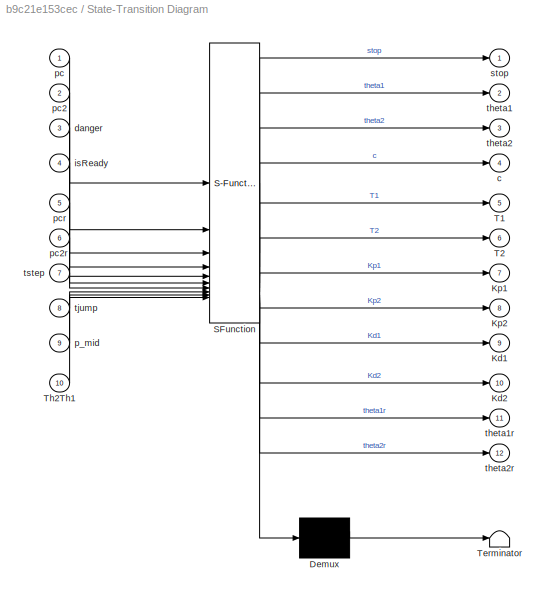
BLOCK [SubSystem] State-Transition Diagram
  ErrorFcn = Stateflow.Translate.translate
  PermitHierarchicalResolution = ExplicitOnly
  PortSchema = {"entries":[{"content":{"sides":[{"content":{"connectorIds":["In7","In8","In9","In10","In4","In5","In6","In1","In2","In3"]},"type":"ConnectorPlacement.EquallySpacedRectSide","uuid":"09499f21-f50c-4ce4-914e-8b9942bcc246"},{"content":{"connectorIds":["Out2","Out11","Out7","Out9","Out5","Out4","Out1","Out3","Out12","Out8","Out10","Out6"],"side":"RIGHT"},"type":"ConnectorPlacement.EquallySpacedRectSid...<+375ch>
  SFBlockType = Chart
  TreatAsAtomicUnit = on
BLOCK [Demux] State-Transition Diagram/ Demux 
  Outputs = 1
BLOCK [S-Function] State-Transition Diagram/ SFunction 
  EnableBusSupport = on
  FunctionName = sf_sfun
  PortCounts = [10 13]
  SFcnIsStateOwnerBlock = off
  SFunctionDeploymentMode = off
  Tag = Stateflow S-Function 8
BLOCK [Terminator] State-Transition Diagram/ Terminator 
BLOCK [Outport] State-Transition Diagram/Kd1
  Port = 9
BLOCK [Outport] State-Transition Diagram/Kd2
  Port = 10
BLOCK [Outport] State-Transition Diagram/Kp1
  Port = 7
BLOCK [Outport] State-Transition Diagram/Kp2
  Port = 8
BLOCK [Outport] State-Transition Diagram/T1
  Port = 5
BLOCK [Outport] State-Transition Diagram/T2
  Port = 6
BLOCK [Inport] State-Transition Diagram/Th2Th1
  Port = 10
BLOCK [Outport] State-Transition Diagram/c
  Port = 4
BLOCK [Inport] State-Transition Diagram/danger
  Port = 3
BLOCK [Inport] State-Transition Diagram/isReady
  Port = 4
BLOCK [Inport] State-Transition Diagram/p_mid
  Port = 9
BLOCK [Inport] State-Transition Diagram/pc
BLOCK [Inport] State-Transition Diagram/pc2
  Port = 2
BLOCK [Inport] State-Transition Diagram/pc2r
  Port = 6
BLOCK [Inport] State-Transition Diagram/pcr
  Port = 5
BLOCK [Outport] State-Transition Diagram/stop
BLOCK [Outport] State-Transition Diagram/theta1
  Port = 2
BLOCK [Outport] State-Transition Diagram/theta1r
  Port = 11
BLOCK [Outport] State-Transition Diagram/theta2
  Port = 3
BLOCK [Outport] State-Transition Diagram/theta2r
  Port = 12
BLOCK [Inport] State-Transition Diagram/tjump
  Port = 8
BLOCK [Inport] State-Transition Diagram/tstep
  Port = 7
BLOCK [Stop] Stop Simulation
BLOCK [Terminator] Terminator
BLOCK [Terminator] Terminator1
BLOCK [Terminator] Terminator2
BLOCK [Terminator] Terminator3
BLOCK [Terminator] Terminator4
BLOCK [Terminator] Terminator5
BLOCK [Terminator] Terminator6
BLOCK [Terminator] Terminator7
BLOCK [Constant] Th2Th1
  Value = -1.3
BLOCK [ToWorkspace] To Workspace4
  FixptAsFi = on
  MaxDataPoints = inf
  SampleTime = -1
  VariableName = timeout
BLOCK [Constant] isReady
  Value = 0
BLOCK [Constant] p_mid
  Value = 1.1
BLOCK [EditField] tjump
  Alignment = Center
  LabelPosition = Hide
  ShowInitialText = on
BLOCK [EditField] tstep
  Alignment = Center
  LabelPosition = Hide
  ShowInitialText = on
ANNOTATION (root): -1.3 recommended
ANNOTATION (root): 1.1 recommended
ANNOTATION (root): State Transition Diagram
ANNOTATION (root): 8 Degree of Freedom Quadrupedal Robot Controller Robot Name: B.R.U.C.E. (Bouncing Robot Utilizing Controls Engineering)
ANNOTATION (root): BACK OF BRUCE
ANNOTATION (root): FRONT OF BRUCE
ANNOTATION (root): Correct Sign
ANNOTATION (root): Encoder rotational position of each motor
ANNOTATION (root): Function blocks that communicate with the actuators via CAN and hexadecimal.
ANNOTATION (root): HIP ID 5
ANNOTATION (root): HIP ID 7
ANNOTATION (root): HIP ID 8
ANNOTATION (root): ID 1&2
ANNOTATION (root): ID 3 &4
ANNOTATION (root): ID 5 & 6
ANNOTATION (root): ID 7 & 8
ANNOTATION (root): KNEE ID 6
ANNOTATION (root): Read Commands
ANNOTATION (root): Speedgoat IO691 Blocks
ANNOTATION (root): This rotary dial switches between the different motor modes, and controls when the leg is commanded to stand, sit, rotate, jump, and subsequently deinitiate.
ANNOTATION (root): Variable and Command GUI
ANNOTATION (root): Write Commands
ANNOTATION ID1 Write Hip Data: Converts inputted data to an 8-bit unsigned integer
ANNOTATION ID1 Write Hip Data: Standard ID Needs to Match Can ID
ANNOTATION ID2 Write Knee Data: Standard ID Needs to Match Can ID
ANNOTATION ID3 Write Hip Data: Converts inputted data to an 8-bit unsigned integer
ANNOTATION ID3 Write Hip Data: Standard ID Needs to Match Can ID
ANNOTATION ID4 Write Knee Data: Standard ID Needs to Match Can ID
ANNOTATION ID5 Write Hip Data: Converts inputted data to an 8-bit unsigned integer
ANNOTATION ID5 Write Hip Data: Standard ID Needs to Match Can ID
ANNOTATION ID6 Write Knee Data: Standard ID Needs to Match Can ID
ANNOTATION ID7 Write Hip Data: Converts inputted data to an 8-bit unsigned integer
ANNOTATION ID7 Write Hip Data: Standard ID Needs to Match Can ID
ANNOTATION ID8 Write Knee Data: Standard ID Needs to Match Can ID
ANNOTATION Read Hip Data: BACK OF BRUCE
ANNOTATION Read Hip Data: FRONT OF BRUCE Read Hips
ANNOTATION Read Hip Data: HIP ID 5
ANNOTATION Read Hip Data: HIP ID 7
ANNOTATION Read Hip Data: ID 1&2
ANNOTATION Read Hip Data: ID 3 &4
ANNOTATION Read Hip Data: ID 5 & 6
ANNOTATION Read Hip Data: ID 7 & 8
ANNOTATION Read Hip Data/If Action Subsystem: Standard ID Needs to Match Can ID
ANNOTATION Read Hip Data/If Action Subsystem2: Standard ID Needs to Match Can ID
ANNOTATION Read Hip Data/If Action Subsystem4: Standard ID Needs to Match Can ID
ANNOTATION Read Hip Data/If Action Subsystem6: Standard ID Needs to Match Can ID
ANNOTATION Read Knee Data: BACK OF BRUCE
ANNOTATION Read Knee Data: FRONT OF BRUCE
ANNOTATION Read Knee Data: Read Knee's
ANNOTATION Read Knee Data: HIP ID 8
ANNOTATION Read Knee Data: ID 1&2
ANNOTATION Read Knee Data: ID 3 &4
ANNOTATION Read Knee Data: ID 5 & 6
ANNOTATION Read Knee Data: ID 7 & 8
ANNOTATION Read Knee Data: KNEE ID 6
ANNOTATION Read Knee Data/If Action Subsystem1: Standard ID Needs to Match Can ID
ANNOTATION Read Knee Data/If Action Subsystem3: Standard ID Needs to Match Can ID
ANNOTATION Read Knee Data/If Action Subsystem5: Standard ID Needs to Match Can ID
ANNOTATION Read Knee Data/If Action Subsystem7: Standard ID Needs to Match Can ID
LINE  tjump :1 -> State-Transition Diagram:8
LINE  tstep :1 -> State-Transition Diagram:7
LINE Add1:1 -> Gain25:1
LINE Add2:1 -> Gain27:1
LINE Add3:1 -> Gain28:1
LINE Add:1 -> Gain24:1
LINE Clock:1 -> To Workspace4:1
LINE Constant2:1 -> Mux:3
LINE Constant8:1 -> Mux1:3
LINE Danger Detector Function:1 -> State-Transition Diagram:3
LINE Delay1:1 -> State-Transition Diagram:2
LINE Delay2:1 -> State-Transition Diagram:5
LINE Delay3:1 -> State-Transition Diagram:6
LINE Delay:1 -> State-Transition Diagram:1
LINE Demux1:1 -> Gain4:1
LINE Demux1:10 -> Gain2:1
LINE Demux1:11 -> Mux4:3
LINE Demux1:12 -> Mux4:4
LINE Demux1:13 -> Gain3:1
LINE Demux1:2 -> Terminator:1
LINE Demux1:3 -> Gain5:1
LINE Demux1:4 -> Mux5:3
LINE Demux1:5 -> Mux5:4
LINE Demux1:6 -> Gain26:1
NET Demux1:7 -> ID3 Write Hip Data:2, ID4 Write Knee Data:1
LINE Demux1:8 -> Gain1:1
LINE Demux1:9 -> Terminator3:1
LINE Demux2:1 -> Terminator4:1
LINE Demux2:10 -> Gain7:1
LINE Demux2:11 -> Mux6:3
LINE Demux2:12 -> Mux6:4
LINE Demux2:13 -> Gain9:1
LINE Demux2:2 -> Gain10:1
LINE Demux2:3 -> Gain11:1
LINE Demux2:4 -> Mux7:3
LINE Demux2:5 -> Mux7:4
LINE Demux2:6 -> Gain8:1
NET Demux2:7 -> ID1 Write Hip Data:2, ID2 Write Knee Data:1
LINE Demux2:8 -> Terminator5:1
LINE Demux2:9 -> Gain6:1
LINE Demux3:1 -> Gain22:1
LINE Demux3:10 -> Gain19:1
LINE Demux3:11 -> Mux10:3
LINE Demux3:12 -> Mux10:4
LINE Demux3:13 -> Gain21:1
LINE Demux3:2 -> Terminator1:1
LINE Demux3:3 -> Gain23:1
LINE Demux3:4 -> Mux11:3
LINE Demux3:5 -> Mux11:4
LINE Demux3:6 -> Gain20:1
NET Demux3:7 -> ID7 Write Hip Data:2, ID8 Write Knee Data:1
LINE Demux3:8 -> Gain18:1
LINE Demux3:9 -> Terminator2:1
LINE Demux4:1 -> Terminator6:1
LINE Demux4:10 -> Gain15:1
LINE Demux4:11 -> Mux8:3
LINE Demux4:12 -> Mux8:4
LINE Demux4:13 -> Gain17:1
LINE Demux4:2 -> Gain12:1
LINE Demux4:3 -> Gain13:1
LINE Demux4:4 -> Mux9:3
LINE Demux4:5 -> Mux9:4
LINE Demux4:6 -> Gain16:1
NET Demux4:7 -> ID5 Write Hip Data:2, ID6 Write Knee Data:1
LINE Demux4:8 -> Terminator7:1
LINE Demux4:9 -> Gain14:1
LINE Gain10:1 -> Mux7:1
LINE Gain11:1 -> Mux7:2
LINE Gain12:1 -> Mux9:1
LINE Gain13:1 -> Mux9:2
LINE Gain14:1 -> Mux8:1
LINE Gain15:1 -> Mux8:2
LINE Gain16:1 -> Mux9:5
LINE Gain17:1 -> Mux8:5
LINE Gain18:1 -> Mux10:1
LINE Gain19:1 -> Mux10:2
LINE Gain1:1 -> Mux4:1
LINE Gain20:1 -> Mux11:5
LINE Gain21:1 -> Mux10:5
LINE Gain22:1 -> Mux11:1
LINE Gain23:1 -> Mux11:2
LINE Gain24:1 -> Delay1:1
LINE Gain25:1 -> Delay:1
LINE Gain26:1 -> Mux5:5
LINE Gain27:1 -> Delay3:1
LINE Gain28:1 -> Delay2:1
LINE Gain2:1 -> Mux4:2
LINE Gain3:1 -> Mux4:5
LINE Gain4:1 -> Mux5:1
LINE Gain5:1 -> Mux5:2
LINE Gain6:1 -> Mux6:1
LINE Gain7:1 -> Mux6:2
LINE Gain8:1 -> Mux7:5
LINE Gain9:1 -> Mux6:5
LINE Gain:1 -> Saturation:1
LINE ID1 Write Hip Data/Byte Packing:1 -> ID1 Write Hip Data/CAN Pack1:1
LINE ID1 Write Hip Data/CAN Pack1:1 -> ID1 Write Hip Data/CAN Write1:1
LINE ID1 Write Hip Data/Command:1 -> ID1 Write Hip Data/Demux:1
LINE ID1 Write Hip Data/Constant1:1 -> ID1 Write Hip Data/Multiport Switch:3
LINE ID1 Write Hip Data/Constant2:1 -> ID1 Write Hip Data/Multiport Switch:5
LINE ID1 Write Hip Data/Constant:1 -> ID1 Write Hip Data/Multiport Switch:2
LINE ID1 Write Hip Data/Demux:1 -> ID1 Write Hip Data/floats -> bytes:1
LINE ID1 Write Hip Data/Demux:2 -> ID1 Write Hip Data/floats -> bytes:2
LINE ID1 Write Hip Data/Demux:3 -> ID1 Write Hip Data/floats -> bytes:3
LINE ID1 Write Hip Data/Demux:4 -> ID1 Write Hip Data/floats -> bytes:4
LINE ID1 Write Hip Data/Demux:5 -> ID1 Write Hip Data/floats -> bytes:5
LINE ID1 Write Hip Data/Mode:1 -> ID1 Write Hip Data/Multiport Switch:1
LINE ID1 Write Hip Data/Multiport Switch:1 -> ID1 Write Hip Data/Byte Packing:1
LINE ID1 Write Hip Data/floats -> bytes:1 -> ID1 Write Hip Data/Multiport Switch:4
LINE ID2 Write Knee Data/Byte Packing:1 -> ID2 Write Knee Data/CAN Pack1:1
LINE ID2 Write Knee Data/CAN Pack1:1 -> ID2 Write Knee Data/CAN Write1:1
LINE ID2 Write Knee Data/Command:1 -> ID2 Write Knee Data/Demux:1
LINE ID2 Write Knee Data/Constant1:1 -> ID2 Write Knee Data/Multiport Switch:3
LINE ID2 Write Knee Data/Constant2:1 -> ID2 Write Knee Data/Multiport Switch:5
LINE ID2 Write Knee Data/Constant:1 -> ID2 Write Knee Data/Multiport Switch:2
LINE ID2 Write Knee Data/Demux:1 -> ID2 Write Knee Data/floats -> bytes:1
LINE ID2 Write Knee Data/Demux:2 -> ID2 Write Knee Data/floats -> bytes:2
LINE ID2 Write Knee Data/Demux:3 -> ID2 Write Knee Data/floats -> bytes:3
LINE ID2 Write Knee Data/Demux:4 -> ID2 Write Knee Data/floats -> bytes:4
LINE ID2 Write Knee Data/Demux:5 -> ID2 Write Knee Data/floats -> bytes:5
LINE ID2 Write Knee Data/Mode:1 -> ID2 Write Knee Data/Multiport Switch:1
LINE ID2 Write Knee Data/Multiport Switch:1 -> ID2 Write Knee Data/Byte Packing:1
LINE ID2 Write Knee Data/floats -> bytes:1 -> ID2 Write Knee Data/Multiport Switch:4
LINE ID3 Write Hip Data/Byte Packing:1 -> ID3 Write Hip Data/CAN Pack1:1
LINE ID3 Write Hip Data/CAN Pack1:1 -> ID3 Write Hip Data/CAN Write1:1
LINE ID3 Write Hip Data/Command:1 -> ID3 Write Hip Data/Demux:1
LINE ID3 Write Hip Data/Constant1:1 -> ID3 Write Hip Data/Multiport Switch:3
LINE ID3 Write Hip Data/Constant2:1 -> ID3 Write Hip Data/Multiport Switch:5
LINE ID3 Write Hip Data/Constant:1 -> ID3 Write Hip Data/Multiport Switch:2
LINE ID3 Write Hip Data/Demux:1 -> ID3 Write Hip Data/floats -> bytes:1
LINE ID3 Write Hip Data/Demux:2 -> ID3 Write Hip Data/floats -> bytes:2
LINE ID3 Write Hip Data/Demux:3 -> ID3 Write Hip Data/floats -> bytes:3
LINE ID3 Write Hip Data/Demux:4 -> ID3 Write Hip Data/floats -> bytes:4
LINE ID3 Write Hip Data/Demux:5 -> ID3 Write Hip Data/floats -> bytes:5
LINE ID3 Write Hip Data/Mode:1 -> ID3 Write Hip Data/Multiport Switch:1
LINE ID3 Write Hip Data/Multiport Switch:1 -> ID3 Write Hip Data/Byte Packing:1
LINE ID3 Write Hip Data/floats -> bytes:1 -> ID3 Write Hip Data/Multiport Switch:4
LINE ID4 Write Knee Data/Byte Packing:1 -> ID4 Write Knee Data/CAN Pack1:1
LINE ID4 Write Knee Data/CAN Pack1:1 -> ID4 Write Knee Data/CAN Write1:1
LINE ID4 Write Knee Data/Command:1 -> ID4 Write Knee Data/Demux:1
LINE ID4 Write Knee Data/Constant1:1 -> ID4 Write Knee Data/Multiport Switch:3
LINE ID4 Write Knee Data/Constant2:1 -> ID4 Write Knee Data/Multiport Switch:5
LINE ID4 Write Knee Data/Constant:1 -> ID4 Write Knee Data/Multiport Switch:2
LINE ID4 Write Knee Data/Demux:1 -> ID4 Write Knee Data/floats -> bytes:1
LINE ID4 Write Knee Data/Demux:2 -> ID4 Write Knee Data/floats -> bytes:2
LINE ID4 Write Knee Data/Demux:3 -> ID4 Write Knee Data/floats -> bytes:3
LINE ID4 Write Knee Data/Demux:4 -> ID4 Write Knee Data/floats -> bytes:4
LINE ID4 Write Knee Data/Demux:5 -> ID4 Write Knee Data/floats -> bytes:5
LINE ID4 Write Knee Data/Mode:1 -> ID4 Write Knee Data/Multiport Switch:1
LINE ID4 Write Knee Data/Multiport Switch:1 -> ID4 Write Knee Data/Byte Packing:1
LINE ID4 Write Knee Data/floats -> bytes:1 -> ID4 Write Knee Data/Multiport Switch:4
LINE ID5 Write Hip Data/Byte Packing:1 -> ID5 Write Hip Data/CAN Pack1:1
LINE ID5 Write Hip Data/CAN Pack1:1 -> ID5 Write Hip Data/CAN Write1:1
LINE ID5 Write Hip Data/Command:1 -> ID5 Write Hip Data/Demux:1
LINE ID5 Write Hip Data/Constant1:1 -> ID5 Write Hip Data/Multiport Switch:3
LINE ID5 Write Hip Data/Constant2:1 -> ID5 Write Hip Data/Multiport Switch:5
LINE ID5 Write Hip Data/Constant:1 -> ID5 Write Hip Data/Multiport Switch:2
LINE ID5 Write Hip Data/Demux:1 -> ID5 Write Hip Data/floats -> bytes:1
LINE ID5 Write Hip Data/Demux:2 -> ID5 Write Hip Data/floats -> bytes:2
LINE ID5 Write Hip Data/Demux:3 -> ID5 Write Hip Data/floats -> bytes:3
LINE ID5 Write Hip Data/Demux:4 -> ID5 Write Hip Data/floats -> bytes:4
LINE ID5 Write Hip Data/Demux:5 -> ID5 Write Hip Data/floats -> bytes:5
LINE ID5 Write Hip Data/Mode:1 -> ID5 Write Hip Data/Multiport Switch:1
LINE ID5 Write Hip Data/Multiport Switch:1 -> ID5 Write Hip Data/Byte Packing:1
LINE ID5 Write Hip Data/floats -> bytes:1 -> ID5 Write Hip Data/Multiport Switch:4
LINE ID6 Write Knee Data/Byte Packing:1 -> ID6 Write Knee Data/CAN Pack1:1
LINE ID6 Write Knee Data/CAN Pack1:1 -> ID6 Write Knee Data/CAN Write1:1
LINE ID6 Write Knee Data/Command:1 -> ID6 Write Knee Data/Demux:1
LINE ID6 Write Knee Data/Constant1:1 -> ID6 Write Knee Data/Multiport Switch:3
LINE ID6 Write Knee Data/Constant2:1 -> ID6 Write Knee Data/Multiport Switch:5
LINE ID6 Write Knee Data/Constant:1 -> ID6 Write Knee Data/Multiport Switch:2
LINE ID6 Write Knee Data/Demux:1 -> ID6 Write Knee Data/floats -> bytes:1
LINE ID6 Write Knee Data/Demux:2 -> ID6 Write Knee Data/floats -> bytes:2
LINE ID6 Write Knee Data/Demux:3 -> ID6 Write Knee Data/floats -> bytes:3
LINE ID6 Write Knee Data/Demux:4 -> ID6 Write Knee Data/floats -> bytes:4
LINE ID6 Write Knee Data/Demux:5 -> ID6 Write Knee Data/floats -> bytes:5
LINE ID6 Write Knee Data/Mode:1 -> ID6 Write Knee Data/Multiport Switch:1
LINE ID6 Write Knee Data/Multiport Switch:1 -> ID6 Write Knee Data/Byte Packing:1
LINE ID6 Write Knee Data/floats -> bytes:1 -> ID6 Write Knee Data/Multiport Switch:4
LINE ID7 Write Hip Data/Byte Packing:1 -> ID7 Write Hip Data/CAN Pack1:1
LINE ID7 Write Hip Data/CAN Pack1:1 -> ID7 Write Hip Data/CAN Write1:1
LINE ID7 Write Hip Data/Command:1 -> ID7 Write Hip Data/Demux:1
LINE ID7 Write Hip Data/Constant1:1 -> ID7 Write Hip Data/Multiport Switch:3
LINE ID7 Write Hip Data/Constant2:1 -> ID7 Write Hip Data/Multiport Switch:5
LINE ID7 Write Hip Data/Constant:1 -> ID7 Write Hip Data/Multiport Switch:2
LINE ID7 Write Hip Data/Demux:1 -> ID7 Write Hip Data/floats -> bytes:1
LINE ID7 Write Hip Data/Demux:2 -> ID7 Write Hip Data/floats -> bytes:2
LINE ID7 Write Hip Data/Demux:3 -> ID7 Write Hip Data/floats -> bytes:3
LINE ID7 Write Hip Data/Demux:4 -> ID7 Write Hip Data/floats -> bytes:4
LINE ID7 Write Hip Data/Demux:5 -> ID7 Write Hip Data/floats -> bytes:5
LINE ID7 Write Hip Data/Mode:1 -> ID7 Write Hip Data/Multiport Switch:1
LINE ID7 Write Hip Data/Multiport Switch:1 -> ID7 Write Hip Data/Byte Packing:1
LINE ID7 Write Hip Data/floats -> bytes:1 -> ID7 Write Hip Data/Multiport Switch:4
LINE ID8 Write Knee Data/Byte Packing:1 -> ID8 Write Knee Data/CAN Pack1:1
LINE ID8 Write Knee Data/CAN Pack1:1 -> ID8 Write Knee Data/CAN Write1:1
LINE ID8 Write Knee Data/Command:1 -> ID8 Write Knee Data/Demux:1
LINE ID8 Write Knee Data/Constant1:1 -> ID8 Write Knee Data/Multiport Switch:3
LINE ID8 Write Knee Data/Constant2:1 -> ID8 Write Knee Data/Multiport Switch:5
LINE ID8 Write Knee Data/Constant:1 -> ID8 Write Knee Data/Multiport Switch:2
LINE ID8 Write Knee Data/Demux:1 -> ID8 Write Knee Data/floats -> bytes:1
LINE ID8 Write Knee Data/Demux:2 -> ID8 Write Knee Data/floats -> bytes:2
LINE ID8 Write Knee Data/Demux:3 -> ID8 Write Knee Data/floats -> bytes:3
LINE ID8 Write Knee Data/Demux:4 -> ID8 Write Knee Data/floats -> bytes:4
LINE ID8 Write Knee Data/Demux:5 -> ID8 Write Knee Data/floats -> bytes:5
LINE ID8 Write Knee Data/Mode:1 -> ID8 Write Knee Data/Multiport Switch:1
LINE ID8 Write Knee Data/Multiport Switch:1 -> ID8 Write Knee Data/Byte Packing:1
LINE ID8 Write Knee Data/floats -> bytes:1 -> ID8 Write Knee Data/Multiport Switch:4
LINE Mux10:1 -> ID8 Write Knee Data:2
LINE Mux11:1 -> ID7 Write Hip Data:1
LINE Mux1:1 -> Mux3:3
LINE Mux2:1 -> Danger Detector Function:1
NET Mux3:1 -> Demux1:1, Demux2:1, Demux3:1, Demux4:1
LINE Mux4:1 -> ID4 Write Knee Data:2
LINE Mux5:1 -> ID3 Write Hip Data:1
LINE Mux6:1 -> ID2 Write Knee Data:2
LINE Mux7:1 -> ID1 Write Hip Data:1
LINE Mux8:1 -> ID6 Write Knee Data:2
LINE Mux9:1 -> ID5 Write Hip Data:1
LINE Mux:1 -> Mux3:1
LINE Read Hip Data/CAN Read:1 -> Read Hip Data/While Iterator:1
NET Read Hip Data/CAN Read:2 -> Read Hip Data/If Action Subsystem2:1, Read Hip Data/If Action Subsystem4:1, Read Hip Data/If Action Subsystem6:1, Read Hip Data/If Action Subsystem:1
LINE Read Hip Data/Gain1:1 -> Read Hip Data/P1:1
LINE Read Hip Data/Gain2:1 -> Read Hip Data/P5:1
LINE Read Hip Data/Gain3:1 -> Read Hip Data/P3:1
LINE Read Hip Data/Gain:1 -> Read Hip Data/P7:1
LINE Read Hip Data/If Action Subsystem/CAN Unpack:1 -> Read Hip Data/If Action Subsystem/bytes -> floats:1
LINE Read Hip Data/If Action Subsystem/CAN Unpack:2 -> Read Hip Data/If Action Subsystem/bytes -> floats:2
LINE Read Hip Data/If Action Subsystem/CAN Unpack:3 -> Read Hip Data/If Action Subsystem/bytes -> floats:3
LINE Read Hip Data/If Action Subsystem/CAN Unpack:4 -> Read Hip Data/If Action Subsystem/ID:1
LINE Read Hip Data/If Action Subsystem/CAN Unpack:5 -> Read Hip Data/If Action Subsystem/Status:1
LINE Read Hip Data/If Action Subsystem/In1:1 -> Read Hip Data/If Action Subsystem/CAN Unpack:1
LINE Read Hip Data/If Action Subsystem/bytes -> floats:1 -> Read Hip Data/If Action Subsystem/Position:1
LINE Read Hip Data/If Action Subsystem/bytes -> floats:2 -> Read Hip Data/If Action Subsystem/Velocity:1
LINE Read Hip Data/If Action Subsystem/bytes -> floats:3 -> Read Hip Data/If Action Subsystem/Current:1
LINE Read Hip Data/If Action Subsystem2/CAN Unpack:1 -> Read Hip Data/If Action Subsystem2/bytes -> floats:1
LINE Read Hip Data/If Action Subsystem2/CAN Unpack:2 -> Read Hip Data/If Action Subsystem2/bytes -> floats:2
LINE Read Hip Data/If Action Subsystem2/CAN Unpack:3 -> Read Hip Data/If Action Subsystem2/bytes -> floats:3
LINE Read Hip Data/If Action Subsystem2/CAN Unpack:4 -> Read Hip Data/If Action Subsystem2/ID:1
LINE Read Hip Data/If Action Subsystem2/CAN Unpack:5 -> Read Hip Data/If Action Subsystem2/Status:1
LINE Read Hip Data/If Action Subsystem2/In1:1 -> Read Hip Data/If Action Subsystem2/CAN Unpack:1
LINE Read Hip Data/If Action Subsystem2/bytes -> floats:1 -> Read Hip Data/If Action Subsystem2/Position:1
LINE Read Hip Data/If Action Subsystem2/bytes -> floats:2 -> Read Hip Data/If Action Subsystem2/Velocity:1
LINE Read Hip Data/If Action Subsystem2/bytes -> floats:3 -> Read Hip Data/If Action Subsystem2/Current:1
LINE Read Hip Data/If Action Subsystem2:1 -> Read Hip Data/Gain1:1
LINE Read Hip Data/If Action Subsystem2:2 -> Read Hip Data/Terminator4:1
LINE Read Hip Data/If Action Subsystem2:3 -> Read Hip Data/Terminator5:1
LINE Read Hip Data/If Action Subsystem2:4 -> Read Hip Data/Terminator6:1
LINE Read Hip Data/If Action Subsystem2:5 -> Read Hip Data/Terminator7:1
LINE Read Hip Data/If Action Subsystem4/CAN Unpack:1 -> Read Hip Data/If Action Subsystem4/bytes -> floats:1
LINE Read Hip Data/If Action Subsystem4/CAN Unpack:2 -> Read Hip Data/If Action Subsystem4/bytes -> floats:2
LINE Read Hip Data/If Action Subsystem4/CAN Unpack:3 -> Read Hip Data/If Action Subsystem4/bytes -> floats:3
LINE Read Hip Data/If Action Subsystem4/CAN Unpack:4 -> Read Hip Data/If Action Subsystem4/ID:1
LINE Read Hip Data/If Action Subsystem4/CAN Unpack:5 -> Read Hip Data/If Action Subsystem4/Status:1
LINE Read Hip Data/If Action Subsystem4/In1:1 -> Read Hip Data/If Action Subsystem4/CAN Unpack:1
LINE Read Hip Data/If Action Subsystem4/bytes -> floats:1 -> Read Hip Data/If Action Subsystem4/Position:1
LINE Read Hip Data/If Action Subsystem4/bytes -> floats:2 -> Read Hip Data/If Action Subsystem4/Velocity:1
LINE Read Hip Data/If Action Subsystem4/bytes -> floats:3 -> Read Hip Data/If Action Subsystem4/Current:1
LINE Read Hip Data/If Action Subsystem4:1 -> Read Hip Data/Gain:1
LINE Read Hip Data/If Action Subsystem4:2 -> Read Hip Data/Terminator8:1
LINE Read Hip Data/If Action Subsystem4:3 -> Read Hip Data/Terminator9:1
LINE Read Hip Data/If Action Subsystem4:4 -> Read Hip Data/Terminator10:1
LINE Read Hip Data/If Action Subsystem4:5 -> Read Hip Data/Terminator11:1
LINE Read Hip Data/If Action Subsystem6/CAN Unpack:1 -> Read Hip Data/If Action Subsystem6/bytes -> floats:1
LINE Read Hip Data/If Action Subsystem6/CAN Unpack:2 -> Read Hip Data/If Action Subsystem6/bytes -> floats:2
LINE Read Hip Data/If Action Subsystem6/CAN Unpack:3 -> Read Hip Data/If Action Subsystem6/bytes -> floats:3
LINE Read Hip Data/If Action Subsystem6/CAN Unpack:4 -> Read Hip Data/If Action Subsystem6/ID:1
LINE Read Hip Data/If Action Subsystem6/CAN Unpack:5 -> Read Hip Data/If Action Subsystem6/Status:1
LINE Read Hip Data/If Action Subsystem6/In1:1 -> Read Hip Data/If Action Subsystem6/CAN Unpack:1
LINE Read Hip Data/If Action Subsystem6/bytes -> floats:1 -> Read Hip Data/If Action Subsystem6/Position:1
LINE Read Hip Data/If Action Subsystem6/bytes -> floats:2 -> Read Hip Data/If Action Subsystem6/Velocity:1
LINE Read Hip Data/If Action Subsystem6/bytes -> floats:3 -> Read Hip Data/If Action Subsystem6/Current:1
LINE Read Hip Data/If Action Subsystem6:1 -> Read Hip Data/Gain2:1
LINE Read Hip Data/If Action Subsystem6:2 -> Read Hip Data/Terminator12:1
LINE Read Hip Data/If Action Subsystem6:3 -> Read Hip Data/Terminator13:1
LINE Read Hip Data/If Action Subsystem6:4 -> Read Hip Data/Terminator14:1
LINE Read Hip Data/If Action Subsystem6:5 -> Read Hip Data/Terminator15:1
LINE Read Hip Data/If Action Subsystem:1 -> Read Hip Data/Gain3:1
LINE Read Hip Data/If Action Subsystem:2 -> Read Hip Data/Terminator:1
LINE Read Hip Data/If Action Subsystem:3 -> Read Hip Data/Terminator1:1
LINE Read Hip Data/If Action Subsystem:4 -> Read Hip Data/Terminator2:1
LINE Read Hip Data/If Action Subsystem:5 -> Read Hip Data/Terminator3:1
LINE Read Hip Data/While Iterator:1 -> Read Hip Data/Display:1
NET Read Hip Data:1 -> Add3:2, Mux2:1
NET Read Hip Data:2 -> Add1:2, Mux2:3
NET Read Hip Data:3 -> Add3:1, Mux2:5
NET Read Hip Data:4 -> Add1:1, Mux2:7
LINE Read Knee Data/CAN Read:1 -> Read Knee Data/While Iterator:1
NET Read Knee Data/CAN Read:2 -> Read Knee Data/If Action Subsystem1:1, Read Knee Data/If Action Subsystem3:1, Read Knee Data/If Action Subsystem5:1, Read Knee Data/If Action Subsystem7:1
LINE Read Knee Data/Gain1:1 -> Read Knee Data/P4:1
LINE Read Knee Data/Gain2:1 -> Read Knee Data/P2:1
LINE Read Knee Data/Gain3:1 -> Read Knee Data/P6:1
LINE Read Knee Data/Gain:1 -> Read Knee Data/P8:1
LINE Read Knee Data/If Action Subsystem1/CAN Unpack:1 -> Read Knee Data/If Action Subsystem1/bytes -> floats:1
LINE Read Knee Data/If Action Subsystem1/CAN Unpack:2 -> Read Knee Data/If Action Subsystem1/bytes -> floats:2
LINE Read Knee Data/If Action Subsystem1/CAN Unpack:3 -> Read Knee Data/If Action Subsystem1/bytes -> floats:3
LINE Read Knee Data/If Action Subsystem1/CAN Unpack:4 -> Read Knee Data/If Action Subsystem1/ID:1
LINE Read Knee Data/If Action Subsystem1/CAN Unpack:5 -> Read Knee Data/If Action Subsystem1/Status:1
LINE Read Knee Data/If Action Subsystem1/In1:1 -> Read Knee Data/If Action Subsystem1/CAN Unpack:1
LINE Read Knee Data/If Action Subsystem1/bytes -> floats:1 -> Read Knee Data/If Action Subsystem1/Position:1
LINE Read Knee Data/If Action Subsystem1/bytes -> floats:2 -> Read Knee Data/If Action Subsystem1/Velocity:1
LINE Read Knee Data/If Action Subsystem1/bytes -> floats:3 -> Read Knee Data/If Action Subsystem1/Current:1
LINE Read Knee Data/If Action Subsystem1:1 -> Read Knee Data/Gain1:1
LINE Read Knee Data/If Action Subsystem1:2 -> Read Knee Data/Terminator8:1
LINE Read Knee Data/If Action Subsystem1:3 -> Read Knee Data/Terminator9:1
LINE Read Knee Data/If Action Subsystem1:4 -> Read Knee Data/Terminator10:1
LINE Read Knee Data/If Action Subsystem1:5 -> Read Knee Data/Terminator11:1
LINE Read Knee Data/If Action Subsystem3/CAN Unpack:1 -> Read Knee Data/If Action Subsystem3/bytes -> floats:1
LINE Read Knee Data/If Action Subsystem3/CAN Unpack:2 -> Read Knee Data/If Action Subsystem3/bytes -> floats:2
LINE Read Knee Data/If Action Subsystem3/CAN Unpack:3 -> Read Knee Data/If Action Subsystem3/bytes -> floats:3
LINE Read Knee Data/If Action Subsystem3/CAN Unpack:4 -> Read Knee Data/If Action Subsystem3/ID:1
LINE Read Knee Data/If Action Subsystem3/CAN Unpack:5 -> Read Knee Data/If Action Subsystem3/Status:1
LINE Read Knee Data/If Action Subsystem3/In1:1 -> Read Knee Data/If Action Subsystem3/CAN Unpack:1
LINE Read Knee Data/If Action Subsystem3/bytes -> floats:1 -> Read Knee Data/If Action Subsystem3/Position:1
LINE Read Knee Data/If Action Subsystem3/bytes -> floats:2 -> Read Knee Data/If Action Subsystem3/Velocity:1
LINE Read Knee Data/If Action Subsystem3/bytes -> floats:3 -> Read Knee Data/If Action Subsystem3/Current:1
LINE Read Knee Data/If Action Subsystem3:1 -> Read Knee Data/Gain2:1
LINE Read Knee Data/If Action Subsystem3:2 -> Read Knee Data/Terminator:1
LINE Read Knee Data/If Action Subsystem3:3 -> Read Knee Data/Terminator1:1
LINE Read Knee Data/If Action Subsystem3:4 -> Read Knee Data/Terminator2:1
LINE Read Knee Data/If Action Subsystem3:5 -> Read Knee Data/Terminator3:1
LINE Read Knee Data/If Action Subsystem5/CAN Unpack:1 -> Read Knee Data/If Action Subsystem5/bytes -> floats:1
LINE Read Knee Data/If Action Subsystem5/CAN Unpack:2 -> Read Knee Data/If Action Subsystem5/bytes -> floats:2
LINE Read Knee Data/If Action Subsystem5/CAN Unpack:3 -> Read Knee Data/If Action Subsystem5/bytes -> floats:3
LINE Read Knee Data/If Action Subsystem5/CAN Unpack:4 -> Read Knee Data/If Action Subsystem5/ID:1
LINE Read Knee Data/If Action Subsystem5/CAN Unpack:5 -> Read Knee Data/If Action Subsystem5/Status:1
LINE Read Knee Data/If Action Subsystem5/In1:1 -> Read Knee Data/If Action Subsystem5/CAN Unpack:1
LINE Read Knee Data/If Action Subsystem5/bytes -> floats:1 -> Read Knee Data/If Action Subsystem5/Position:1
LINE Read Knee Data/If Action Subsystem5/bytes -> floats:2 -> Read Knee Data/If Action Subsystem5/Velocity:1
LINE Read Knee Data/If Action Subsystem5/bytes -> floats:3 -> Read Knee Data/If Action Subsystem5/Current:1
LINE Read Knee Data/If Action Subsystem5:1 -> Read Knee Data/Gain:1
LINE Read Knee Data/If Action Subsystem5:2 -> Read Knee Data/Terminator12:1
LINE Read Knee Data/If Action Subsystem5:3 -> Read Knee Data/Terminator13:1
LINE Read Knee Data/If Action Subsystem5:4 -> Read Knee Data/Terminator14:1
LINE Read Knee Data/If Action Subsystem5:5 -> Read Knee Data/Terminator15:1
LINE Read Knee Data/If Action Subsystem7/CAN Unpack:1 -> Read Knee Data/If Action Subsystem7/bytes -> floats:1
LINE Read Knee Data/If Action Subsystem7/CAN Unpack:2 -> Read Knee Data/If Action Subsystem7/bytes -> floats:2
LINE Read Knee Data/If Action Subsystem7/CAN Unpack:3 -> Read Knee Data/If Action Subsystem7/bytes -> floats:3
LINE Read Knee Data/If Action Subsystem7/CAN Unpack:4 -> Read Knee Data/If Action Subsystem7/ID:1
LINE Read Knee Data/If Action Subsystem7/CAN Unpack:5 -> Read Knee Data/If Action Subsystem7/Status:1
LINE Read Knee Data/If Action Subsystem7/In1:1 -> Read Knee Data/If Action Subsystem7/CAN Unpack:1
LINE Read Knee Data/If Action Subsystem7/bytes -> floats:1 -> Read Knee Data/If Action Subsystem7/Position:1
LINE Read Knee Data/If Action Subsystem7/bytes -> floats:2 -> Read Knee Data/If Action Subsystem7/Velocity:1
LINE Read Knee Data/If Action Subsystem7/bytes -> floats:3 -> Read Knee Data/If Action Subsystem7/Current:1
LINE Read Knee Data/If Action Subsystem7:1 -> Read Knee Data/Gain3:1
LINE Read Knee Data/If Action Subsystem7:2 -> Read Knee Data/Terminator4:1
LINE Read Knee Data/If Action Subsystem7:3 -> Read Knee Data/Terminator5:1
LINE Read Knee Data/If Action Subsystem7:4 -> Read Knee Data/Terminator6:1
LINE Read Knee Data/If Action Subsystem7:5 -> Read Knee Data/Terminator7:1
LINE Read Knee Data/While Iterator:1 -> Read Knee Data/Display:1
NET Read Knee Data:1 -> Add2:1, Mux2:2
NET Read Knee Data:2 -> Add:1, Mux2:4
NET Read Knee Data:3 -> Add2:2, Mux2:6
NET Read Knee Data:4 -> Add:2, Mux2:8
LINE Saturation1:1 -> State-Transition Diagram:10
LINE Saturation:1 -> State-Transition Diagram:9
LINE State-Transition Diagram:1 -> Stop Simulation:1
LINE State-Transition Diagram:10 -> Mux1:5
LINE State-Transition Diagram:11 -> Mux:2
LINE State-Transition Diagram:12 -> Mux1:2
LINE State-Transition Diagram:2 -> Mux:1
LINE State-Transition Diagram:3 -> Mux1:1
LINE State-Transition Diagram:4 -> Mux3:2
LINE State-Transition Diagram:5 -> Mux:6
LINE State-Transition Diagram:6 -> Mux1:6
LINE State-Transition Diagram:7 -> Mux:4
LINE State-Transition Diagram:8 -> Mux1:4
LINE State-Transition Diagram:9 -> Mux:5
LINE Th2Th1:1 -> Saturation1:1
LINE isReady:1 -> State-Transition Diagram:4
LINE p_mid:1 -> Gain:1
note: NET lines group one-source signal fan-out (src -> all destinations, sorted); 1:1 wires keep LINE
CHART ID4 Write Knee Data/floats -> bytes states=1 transitions=1
  STATE_LABEL 'eML_blk_kernel()'
  STATE_LABEL 'SCRIPT:\nfunction b = fcn(position, velocity, K_p, K_d, T_ff)\n\nP_MIN  =-95.5;  % [rad]\nP_MAX  = 95.5;  % [rad]\nV_MIN  =-45;    % [rad/s] 30 to 45\nV_MAX  = 45;    % [rad/s]\nKP_MIN = 0;     % [Nm/rad]\nKP_MAX = 500;   % [Nm/rad]\nKD_MIN = 0;     % [Nm*s/rad\nKD_MAX = 5;     % [Nm*s/rad\nT_MIN  =-18;    % [Nm]\nT_MAX  = 18;    % [Nm]\n\nposition = floor((max(min(position,P_MAX) ,P_MIN)  - P_MIN )*65535/(P_MA...<+891ch>'  <repeated x8 — deduplicated; at blocks: floats -> bytes>
CHART ID3 Write Hip Data/floats -> bytes states=1 transitions=1
  STATE_LABEL 'eML_blk_kernel()'
CHART Danger Detector Function states=1 transitions=1
  STATE_LABEL 'eML_blk_kernel()'
  STATE_LABEL 'SCRIPT:\nfunction danger = isDanger(Pmux)\n    % Pmux position matrix radians\n    %       [p(ID1),p(ID2),p(ID3),p(IDN)]\n\n    \n    p1Max = 2; \n    p1Min = -2;\n    p2Max = 2;\n    p2Min = -2;\n    \n    P1 = Pmux(1:2:end);\n    P2 = Pmux(2:2:end);\n       \n    danger = 0;\n    if((0<sum([P1>p1Max] + [P1<p1Min] - [P1<=-95.5])) || (0<sum([P2>p2Max] + [P2<p2Min] - [P2<=-95.5])))\n    \n%     if((0<sum([P1>p1Max]...<+82ch>'
CHART State-Transition Diagram states=17 transitions=27
  STATE_LABEL 'Start'
  STATE_LABEL '<!DOCTYPE HTML PUBLIC "-//W3C//DTD HTML 4.0//EN" "http://www.w3.org/TR/REC-html40/strict.dtd">\n<html><head><meta name="qrichtext" content="1" /><style type="text/css">\np, li { white-space: pre-wrap; }\n</style></head><body align="left" style=" font-family:\'Helvetica\'; font-size:12px; font-weight:400; font-style:normal;">\n<p align="left" style=" margin-top:0px; margin-bottom:0px; margin-left:0px; ma...<+2358ch>'
  STATE_LABEL 'Zero\nentry:\nc = 1;'
  STATE_LABEL 'Init\nentry:\nc = 2;'
  STATE_LABEL 'SlowDown\nentry:\n%deinitiate mode\nc = 4'
  STATE_LABEL 'Command\nentry:\nc = 3;\np_sit = -.8;\np_stand = -1.35;\np_jump = -.4;'
  STATE_LABEL 'JumpPrep\nentry:\nto = t;\n% Left Side\ntheta1 = pc;\npo1 = theta1;\nslope1 = (pf - po1)/tstep;\ntheta2 = pc2;\npo2 = theta2;\nslope2 = (Th2Th1*pf - po2)/tstep;\n%Right Side\ntheta1r = pcr;\npo1r = theta1r;\nslope1r = (pfr - po1r)/tstep;\ntheta2r = pc2r;\npo2r = theta2r;\nslope2r = (Th2Th1*pfr - po2r)/tstep;\nduring:\ntheta1  = po1  + slope1*(t-to);\ntheta2  = po2  + slope2*(t-to);\ntheta1r = po1r + slope1r*(t-to);\nt...<+31ch>'
  STATE_LABEL 'Stand\nentry:\nto = t;\n% Left Side\ntheta1 = pc;\npo1 = theta1;\nslope1 = (pf - po1)/tstep;\ntheta2 = pc2;\npo2 = theta2;\nslope2 = (Th2Th1*pf - po2)/tstep;\n%Right Side\ntheta1r = pcr;\npo1r = theta1r;\nslope1r = (pfr - po1r)/tstep;\ntheta2r = pc2r;\npo2r = theta2r;\nslope2r = (Th2Th1*pfr - po2r)/tstep;\nduring:\ntheta1  = po1  + slope1*(t-to);\ntheta2  = po2  + slope2*(t-to);\ntheta1r = po1r + slope1r*(t-to);\nthet...<+28ch>'
  STATE_LABEL 'Jump\nentry:\nto = t;\n% Left Side\ntheta1 = pc;\npo1 = theta1;\nslope1 = (pf - po1)/tjump;\ntheta2 = pc2;\npo2 = theta2;\nslope2 = (Th2Th1*pf - po2)/tjump;\n%Right Side\ntheta1r = pcr;\npo1r = theta1r;\nslope1r = (pfr - po1r)/tjump;\ntheta2r = pc2r;\npo2r = theta2r;\nslope2r = (Th2Th1*pfr - po2r)/tjump;\nduring:\ntheta1  = po1  + slope1*(t-to);\ntheta2  = po2  + slope2*(t-to);\ntheta1r = po1r + slope1r*(t-to);\ntheta...<+27ch>'
  STATE_LABEL 'Idle\n\n'
  STATE_LABEL 'Land\nentry:\nto = t;\nKp1temp = Kp1\nKp2temp = Kp2\nKp1 = 15;\nKp2 = 15;\n% Left Side\ntheta1 = pc;\npo1 = theta1;\nslope1 = (pf - po1)/tjump;\ntheta2 = pc2;\npo2 = theta2;\nslope2 = (Th2Th1*pf - po2)/tjump;\n%Right Side\ntheta1r = pcr;\npo1r = theta1r;\nslope1r = (pfr - po1r)/tjump;\ntheta2r = pc2r;\npo2r = theta2r;\nslope2r = (Th2Th1*pfr - po2r)/tjump;\nduring:\ntheta1  = po1  + slope1*(t-to);\ntheta2  = po2  + slope...<+76ch>'
  STATE_LABEL 'LeftUp\nentry:\nto = t;\n% Left Side\ntheta1 = pc;\npo1 = theta1;\nslope1 = (pf - po1)/tstep;\ntheta2 = pc2;\npo2 = theta2;\nslope2 = (Th2Th1*pf - po2)/tstep;\n%Right Side\ntheta1r = pcr;\npo1r = theta1r;\nslope1r = (pfr - po1r)/tstep;\ntheta2r = pc2r;\npo2r = theta2r;\nslope2r = (Th2Th1*pfr - po2r)/tstep;\nduring:\ntheta1  = po1  + slope1*(t-to);\ntheta2  = po2  + slope2*(t-to);\ntheta1r = po1r + slope1r*(t-to);\nthe...<+29ch>'
  STATE_LABEL 'RightUp\nentry:\nto = t;\n% Left Side\ntheta1 = pc;\npo1 = theta1;\nslope1 = (pf - po1)/tstep;\ntheta2 = pc2;\npo2 = theta2;\nslope2 = (Th2Th1*pf - po2)/tstep;\n%Right Side\ntheta1r = pcr;\npo1r = theta1r;\nslope1r = (pfr - po1r)/tstep;\ntheta2r = pc2r;\npo2r = theta2r;\nslope2r = (Th2Th1*pfr - po2r)/tstep;\nduring:\ntheta1  = po1  + slope1*(t-to);\ntheta2  = po2  + slope2*(t-to);\ntheta1r = po1r + slope1r*(t-to);\nth...<+30ch>'
  STATE_LABEL 'Sit\nentry:\nto = t;\n% Left Side\ntheta1 = pc;\npo1 = theta1;\nslope1 = (pf - po1)/tstep;\ntheta2 = pc2;\npo2 = theta2;\nslope2 = (Th2Th1*pf - po2)/tstep;\n%Right Side\ntheta1r = pcr;\npo1r = theta1r;\nslope1r = (pfr - po1r)/tstep;\ntheta2r = pc2r;\npo2r = theta2r;\nslope2r = (Th2Th1*pfr - po2r)/tstep;\nduring:\ntheta1  = po1  + slope1*(t-to);\ntheta2  = po2  + slope2*(t-to);\ntheta1r = po1r + slope1r*(t-to);\ntheta2...<+26ch>'
  STATE_LABEL 'Idle1\nexit:\nKp1 = Kp1temp;\nKp2 = Kp2temp;\n'
  STATE_LABEL '{pf = p_sit; pfr = p_sit;}'
  STATE_LABEL '[(theta1 >= pf & slope1>0) | (theta1 <= pf & slope1<0) & (theta1r >= pfr & slope1r>0) | (theta1r <= pfr & slope1r<0)]\n{theta1 = pf; theta2 = theta1 * Th2Th1; theta1r = pfr; theta2r = theta1r * Th2Th1;}'  <repeated x6 — deduplicated; at blocks: State-Transition Diagram>
  STATE_LABEL '[wasReady ~= isReady & isReady == 2]\n{pf = p_sit; pfr = p_sit; wasReady = isReady;}'
  STATE_LABEL '[wasReady ~= isReady & isReady == 8]\n{pf = p_mid; pfr = p_mid; wasReady = isReady;}'
  STATE_LABEL '[wasReady == 6 & isReady == 7]{pf = p_jump; pfr = p_jump; wasReady = isReady;}'
  STATE_LABEL '[wasReady ~= isReady]'
  STATE_LABEL '[wasReady ~= isReady & isReady == 6]\n{pf = p_sit; pfr = p_mid; wasReady = isReady;}'
  STATE_LABEL '[wasReady ~= isReady & isReady == 5]\n{pf = p_mid; pfr = p_sit; wasReady = isReady;}'
  STATE_LABEL '[wasReady ~= isReady & isReady == 3]\n{pf = p_stand; pfr = p_stand; wasReady = isReady;}'
  STATE_LABEL '[(theta1 >= pf & slope1>0) | (theta1 <= pf & slope1<0) & (theta1r >= pfr & slope1r>0) | (theta1r <= pfr & slope1r<0)]\n{theta1 = pf; theta2 = theta1 * Th2Th1; theta1r = pfr; theta2r = theta1r * Th2Th1; pf = p_sit; pfr = p_sit;}'
  STATE_LABEL 'JumpPrep\nentry:\nto = t;\n% Left Side\ntheta1 = pc;\npo1 = theta1;\nslope1 = (pf - po1)/tstep;\ntheta2 = pc2;\npo2 = theta2;\nslope2 = (Th2Th1*pf - po2)/tstep;\n%Right Side\ntheta1r = pcr;\npo1r = theta1r;\nslope1r = (pfr - po1r)/tstep;\ntheta2r = pc2r;\npo2r = theta2r;\nslope2r = (Th2Th1*pfr - po2r)/tstep;\nduring:\ntheta1  = po1  + slope1*(t-to);\ntheta2  = po2  + slope2*(t-to);\ntheta1r = po1r + slope1r*(t-to);\nt...<+31ch>'
  STATE_LABEL 'Stand\nentry:\nto = t;\n% Left Side\ntheta1 = pc;\npo1 = theta1;\nslope1 = (pf - po1)/tstep;\ntheta2 = pc2;\npo2 = theta2;\nslope2 = (Th2Th1*pf - po2)/tstep;\n%Right Side\ntheta1r = pcr;\npo1r = theta1r;\nslope1r = (pfr - po1r)/tstep;\ntheta2r = pc2r;\npo2r = theta2r;\nslope2r = (Th2Th1*pfr - po2r)/tstep;\nduring:\ntheta1  = po1  + slope1*(t-to);\ntheta2  = po2  + slope2*(t-to);\ntheta1r = po1r + slope1r*(t-to);\nthet...<+28ch>'
  STATE_LABEL 'Jump\nentry:\nto = t;\n% Left Side\ntheta1 = pc;\npo1 = theta1;\nslope1 = (pf - po1)/tjump;\ntheta2 = pc2;\npo2 = theta2;\nslope2 = (Th2Th1*pf - po2)/tjump;\n%Right Side\ntheta1r = pcr;\npo1r = theta1r;\nslope1r = (pfr - po1r)/tjump;\ntheta2r = pc2r;\npo2r = theta2r;\nslope2r = (Th2Th1*pfr - po2r)/tjump;\nduring:\ntheta1  = po1  + slope1*(t-to);\ntheta2  = po2  + slope2*(t-to);\ntheta1r = po1r + slope1r*(t-to);\ntheta...<+27ch>'
  STATE_LABEL 'Idle\n\n'
  STATE_LABEL 'Land\nentry:\nto = t;\nKp1temp = Kp1\nKp2temp = Kp2\nKp1 = 15;\nKp2 = 15;\n% Left Side\ntheta1 = pc;\npo1 = theta1;\nslope1 = (pf - po1)/tjump;\ntheta2 = pc2;\npo2 = theta2;\nslope2 = (Th2Th1*pf - po2)/tjump;\n%Right Side\ntheta1r = pcr;\npo1r = theta1r;\nslope1r = (pfr - po1r)/tjump;\ntheta2r = pc2r;\npo2r = theta2r;\nslope2r = (Th2Th1*pfr - po2r)/tjump;\nduring:\ntheta1  = po1  + slope1*(t-to);\ntheta2  = po2  + slope...<+76ch>'
  STATE_LABEL 'LeftUp\nentry:\nto = t;\n% Left Side\ntheta1 = pc;\npo1 = theta1;\nslope1 = (pf - po1)/tstep;\ntheta2 = pc2;\npo2 = theta2;\nslope2 = (Th2Th1*pf - po2)/tstep;\n%Right Side\ntheta1r = pcr;\npo1r = theta1r;\nslope1r = (pfr - po1r)/tstep;\ntheta2r = pc2r;\npo2r = theta2r;\nslope2r = (Th2Th1*pfr - po2r)/tstep;\nduring:\ntheta1  = po1  + slope1*(t-to);\ntheta2  = po2  + slope2*(t-to);\ntheta1r = po1r + slope1r*(t-to);\nthe...<+29ch>'
  STATE_LABEL 'RightUp\nentry:\nto = t;\n% Left Side\ntheta1 = pc;\npo1 = theta1;\nslope1 = (pf - po1)/tstep;\ntheta2 = pc2;\npo2 = theta2;\nslope2 = (Th2Th1*pf - po2)/tstep;\n%Right Side\ntheta1r = pcr;\npo1r = theta1r;\nslope1r = (pfr - po1r)/tstep;\ntheta2r = pc2r;\npo2r = theta2r;\nslope2r = (Th2Th1*pfr - po2r)/tstep;\nduring:\ntheta1  = po1  + slope1*(t-to);\ntheta2  = po2  + slope2*(t-to);\ntheta1r = po1r + slope1r*(t-to);\nth...<+30ch>'
  STATE_LABEL 'Sit\nentry:\nto = t;\n% Left Side\ntheta1 = pc;\npo1 = theta1;\nslope1 = (pf - po1)/tstep;\ntheta2 = pc2;\npo2 = theta2;\nslope2 = (Th2Th1*pf - po2)/tstep;\n%Right Side\ntheta1r = pcr;\npo1r = theta1r;\nslope1r = (pfr - po1r)/tstep;\ntheta2r = pc2r;\npo2r = theta2r;\nslope2r = (Th2Th1*pfr - po2r)/tstep;\nduring:\ntheta1  = po1  + slope1*(t-to);\ntheta2  = po2  + slope2*(t-to);\ntheta1r = po1r + slope1r*(t-to);\ntheta2...<+26ch>'
  STATE_LABEL 'Idle1\nexit:\nKp1 = Kp1temp;\nKp2 = Kp2temp;\n'
  STATE_LABEL 'FinalShutdown\nentry:\nKp1 = 0;\nKp2 = 0;\ntheta1 = 0;\ntheta2 = 0;\ntheta1r = 0;\ntheta2r = 0;\nT1 = 0;\nT2 = 0;\nKd1 = .1;\nKd2 = .1;\n'
CHART ID2 Write Knee Data/floats -> bytes states=1 transitions=1
  STATE_LABEL 'eML_blk_kernel()'
CHART ID1 Write Hip Data/floats -> bytes states=1 transitions=1
  STATE_LABEL 'eML_blk_kernel()'
CHART ID6 Write Knee Data/floats -> bytes states=1 transitions=1
  STATE_LABEL 'eML_blk_kernel()'
CHART ID5 Write Hip Data/floats -> bytes states=1 transitions=1
  STATE_LABEL 'eML_blk_kernel()'
CHART ID8 Write Knee Data/floats -> bytes states=1 transitions=1
  STATE_LABEL 'eML_blk_kernel()'
CHART ID7 Write Hip Data/floats -> bytes states=1 transitions=1
  STATE_LABEL 'eML_blk_kernel()'
CHART Read Knee Data/If Action
Subsystem1/bytes -> floats states=1 transitions=1
  STATE_LABEL 'eML_blk_kernel()'
  STATE_LABEL 'SCRIPT:\nfunction [position, velocity, I_ff] = fcn(position, velocity, I_ff)\n\nP_MIN  =-95.5;  % [rad]\nP_MAX  = 95.5;  % [rad]\nV_MIN  =-45;    % [rad/s]\nV_MAX  = 45;    % [rad/s]\nI_MIN  =-40;    % []\nI_MAX  = 40;    % []\n\nposition = position*(P_MAX  - P_MIN)/65535+ P_MIN;\nvelocity = velocity*(V_MAX  - V_MIN)/4095 + V_MIN;\nI_ff     = I_ff*(I_MAX  - I_MIN)/4095 + I_MIN;'  <repeated x8 — deduplicated; at blocks: If Action>
CHART Read Knee Data/If Action
Subsystem3/bytes -> floats states=1 transitions=1
  STATE_LABEL 'eML_blk_kernel()'
CHART Read Knee Data/If Action
Subsystem5/bytes -> floats states=1 transitions=1
  STATE_LABEL 'eML_blk_kernel()'
CHART Read Knee Data/If Action
Subsystem7/bytes -> floats states=1 transitions=1
  STATE_LABEL 'eML_blk_kernel()'
CHART Read Hip Data/If Action
Subsystem/bytes -> floats states=1 transitions=1
  STATE_LABEL 'eML_blk_kernel()'
CHART Read Hip Data/If Action
Subsystem2/bytes -> floats states=1 transitions=1
  STATE_LABEL 'eML_blk_kernel()'
CHART Read Hip Data/If Action
Subsystem4/bytes -> floats states=1 transitions=1
  STATE_LABEL 'eML_blk_kernel()'
CHART Read Hip Data/If Action
Subsystem6/bytes -> floats states=1 transitions=1
  STATE_LABEL 'eML_blk_kernel()'
CHART  states=0 transitions=0
CHART  states=0 transitions=0
CHART  states=0 transitions=0
CHART  states=0 transitions=0
CHART  states=0 transitions=0
CHART  states=0 transitions=0
CHART  states=0 transitions=0
CHART  states=0 transitions=0
CHART  states=0 transitions=0
CHART  states=0 transitions=0
CHART  states=0 transitions=0
CHART  states=0 transitions=0
CHART  states=0 transitions=0
CHART  states=0 transitions=0
CHART  states=0 transitions=0
CHART  states=0 transitions=0
CHART  states=0 transitions=0
CHART  states=0 transitions=0
